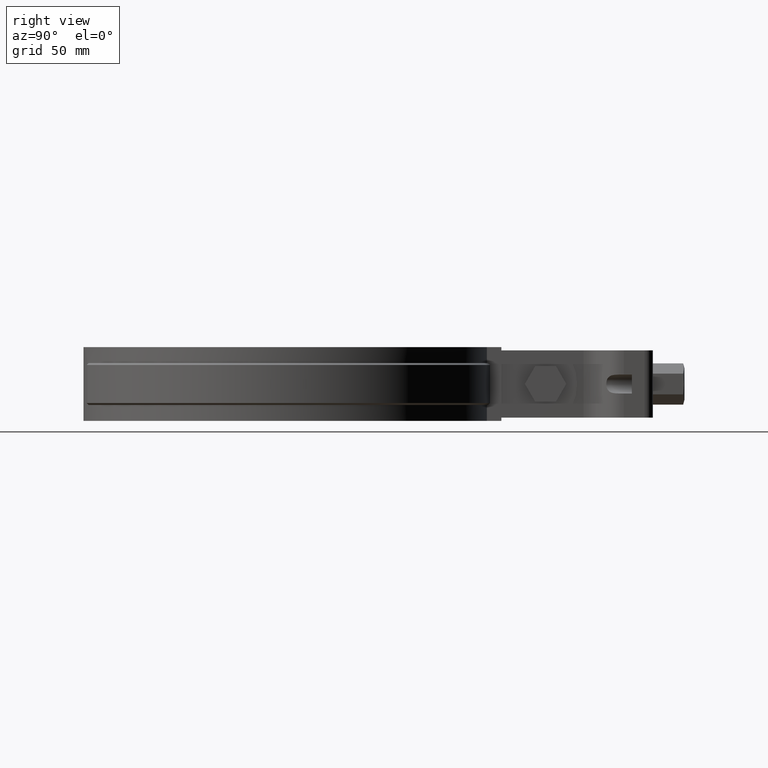
[diagram: clean part render]
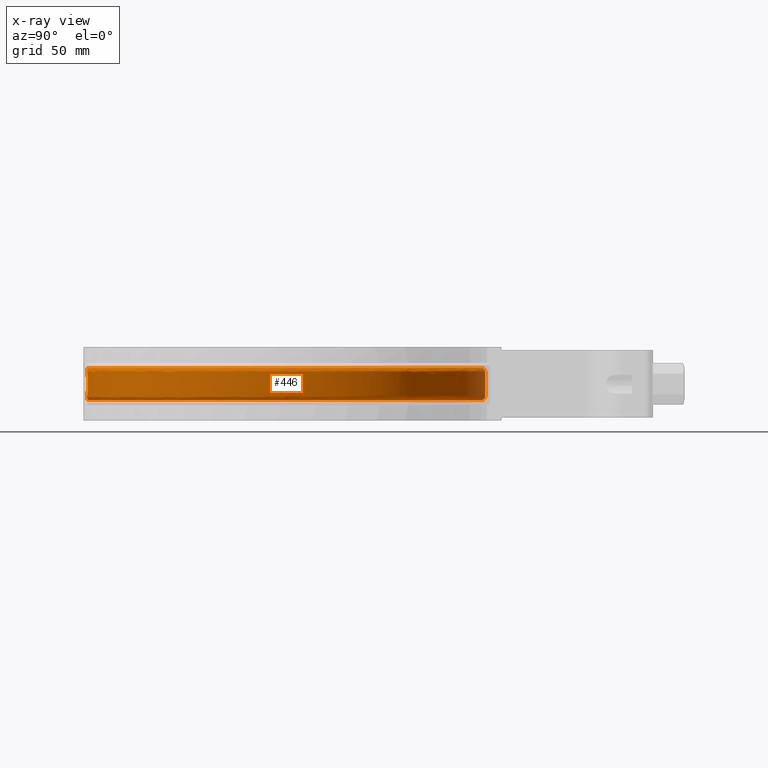
[diagram: x-ray — body ghosted, one internal face saturated and labeled with its STEP entity id]
A machine part, right view, then the same camera in x-ray: the body is ghosted and one INTERNAL B-rep face — a face not visible from any outside direction — is saturated and labeled: STEP entity #446.
In plain terms, the highlighted face is a freeform B-spline surface patch.
Its self-contained STEP definition (entity closure, byte-faithful):
#446 = ADVANCED_FACE( '', ( #788, #789 ), #790, .T. );
#788 = FACE_BOUND( '', #1550, .T. );
#789 = FACE_OUTER_BOUND( '', #1551, .T. );
#790 = B_SPLINE_SURFACE_WITH_KNOTS( '', 3, 3, ( ( #1552, #1553, #1554, #1555, #1556, #1557, #1558, #1559, #1560, #1561, #1562, #1563, #1564, #1565, #1566, #1567, #1568 ), ( #1569, #1570, #1571, #1572, #1573, #1574, #1575, #1576, #1577, #1578, #1579, #1580, #1581, #1582, #1583, #1584, #1585 ), ( #1586, #1587, #1588, #1589, #1590, #1591, #1592, #1593, #1594, #1595, #1596, #1597, #1598, #1599, #1600, #1601, #1602 ), ( #1603, #1604, #1605, #1606, #1607, #1608, #1609, #1610, #1611, #1612, #1613, #1614, #1615, #1616, #1617, #1618, #1619 ), ( #1620, #1621, #1622, #1623, #1624, #1625, #1626, #1627, #1628, #1629, #1630, #1631, #1632, #1633, #1634, #1635, #1636 ), ( #1637, #1638, #1639, #1640, #1641, #1642, #1643, #1644, #1645, #1646, #1647, #1648, #1649, #1650, #1651, #1652, #1653 ), ( #1654, #1655, #1656, #1657, #1658, #1659, #1660, #1661, #1662, #1663, #1664, #1665, #1666, #1667, #1668, #1669, #1670 ), ( #1671, #1672, #1673, #1674, #1675, #1676, #1677, #1678, #1679, #1680, #1681, #1682, #1683, #1684, #1685, #1686, #1687 ), ( #1688, #1689, #1690, #1691, #1692, #1693, #1694, #1695, #1696, #1697, #1698, #1699, #1700, #1701, #1702, #1703, #1704 ), ( #1705, #1706, #1707, #1708, #1709, #1710, #1711, #1712, #1713, #1714, #1715, #1716, #1717, #1718, #1719, #1720, #1721 ), ( #1722, #1723, #1724, #1725, #1726, #1727, #1728, #1729, #1730, #1731, #1732, #1733, #1734, #1735, #1736, #1737, #1738 ), ( #1739, #1740, #1741, #1742, #1743, #1744, #1745, #1746, #1747, #1748, #1749, #1750, #1751, #1752, #1753, #1754, #1755 ), ( #1756, #1757, #1758, #1759, #1760, #1761, #1762, #1763, #1764, #1765, #1766, #1767, #1768, #1769, #1770, #1771, #1772 ), ( #1773, #1774, #1775, #1776, #1777, #1778, #1779, #1780, #1781, #1782, #1783, #1784, #1785, #1786, #1787, #1788, #1789 ), ( #1790, #1791, #1792, #1793, #1794, #1795, #1796, #1797, #1798, #1799, #1800, #1801, #1802, #1803, #1804, #1805, #1806 ), ( #1807, #1808, #1809, #1810, #1811, #1812, #1813, #1814, #1815, #1816, #1817, #1818, #1819, #1820, #1821, #1822, #1823 ), ( #1824, #1825, #1826, #1827, #1828, #1829, #1830, #1831, #1832, #1833, #1834, #1835, #1836, #1837, #1838, #1839, #1840 ), ( #1841, #1842, #1843, #1844, #1845, #1846, #1847, #1848, #1849, #1850, #1851, #1852, #1853, #1854, #1855, #1856, #1857 ), ( #1858, #1859, #1860, #1861, #1862, #1863, #1864, #1865, #1866, #1867, #1868, #1869, #1870, #1871, #1872, #1873, #1874 ), ( #1875, #1876, #1877, #1878, #1879, #1880, #1881, #1882, #1883, #1884, #1885, #1886, #1887, #1888, #1889, #1890, #1891 ), ( #1892, #1893, #1894, #1895, #1896, #1897, #1898, #1899, #1900, #1901, #1902, #1903, #1904, #1905, #1906, #1907, #1908 ), ( #1909, #1910, #1911, #1912, #1913, #1914, #1915, #1916, #1917, #1918, #1919, #1920, #1921, #1922, #1923, #1924, #1925 ) ), .UNSPECIFIED., .F., .F., .F., ( 4, 3, 1, 1, 1, 3, 3, 1, 1, 1, 3, 4 ), ( 4, 1, 1, 1, 1, 1, 1, 1, 1, 1, 1, 1, 1, 1, 4 ), ( 0.000000000000000, 0.0909090909090909, 0.181818181818182, 0.272727272727273, 0.363636363636364, 0.454545454545455, 0.545454545454545, 0.636363636363636, 0.727272727272727, 0.818181818181818, 0.909090909090909, 1.00000000000000 ), ( 2.95232765239058, 4.00000000000000, 5.00000000000000, 6.00000000000000, 7.00000000000000, 8.00000000000000, 9.00000000000000, 10.0000000000000, 11.0000000000000, 12.0000000000000, 13.0000000000000, 14.0000000000000, 15.0000000000000, 16.0000000000000, 17.0000000000000 ), .UNSPECIFIED. );
#1550 = EDGE_LOOP( '', ( #4201, #4202, #4203, #4204, #4205, #4206 ) );
#1551 = EDGE_LOOP( '', ( #4207, #4208, #4209, #4210 ) );
#1552 = CARTESIAN_POINT( '', ( -4.56763401144765, 91.9849112761597, -25.5000000000000 ) );
#1553 = CARTESIAN_POINT( '', ( -18.7312151762936, 91.2825094830827, -25.5000000000000 ) );
#1554 = CARTESIAN_POINT( '', ( -46.1133542076407, 83.3845335569048, -25.5000000000000 ) );
#1555 = CARTESIAN_POINT( '', ( -77.5600743887689, 55.0913393261997, -25.5000000000000 ) );
#1556 = CARTESIAN_POINT( '', ( -93.6608389160550, 16.6886710842363, -25.5000000000000 ) );
#1557 = CARTESIAN_POINT( '', ( -91.8160921178461, -24.9120241628456, -25.5000000000000 ) );
#1558 = CARTESIAN_POINT( '', ( -72.3810764576410, -61.7397395080481, -25.5000000000000 ) );
#1559 = CARTESIAN_POINT( '', ( -39.0787776362604, -86.7390533070568, -25.5000000000000 ) );
#1560 = CARTESIAN_POINT( '', ( 1.71043136730013, -95.1203902903699, -25.5000000000000 ) );
#1561 = CARTESIAN_POINT( '', ( 42.1719465696436, -85.2780177789266, -25.5000000000000 ) );
#1562 = CARTESIAN_POINT( '', ( 74.5539428683033, -59.0976101841152, -25.5000000000000 ) );
#1563 = CARTESIAN_POINT( '', ( 92.6523718270429, -21.5948825619505, -25.5000000000000 ) );
#1564 = CARTESIAN_POINT( '', ( 93.0002903728699, 20.0448852237991, -25.5000000000000 ) );
#1565 = CARTESIAN_POINT( '', ( 75.5293324530292, 57.8452016208980, -25.5000000000000 ) );
#1566 = CARTESIAN_POINT( '', ( 43.5930659544325, 84.5599845188250, -25.5000000000000 ) );
#1567 = CARTESIAN_POINT( '', ( 16.7218261678100, 91.5775242579307, -25.5000000000000 ) );
#1568 = CARTESIAN_POINT( '', ( 3.19295846048184, 92.0426261980790, -25.5000000000000 ) );
#1569 = CARTESIAN_POINT( '', ( -4.55040214201927, 92.7894678815792, -24.6952621458757 ) );
#1570 = CARTESIAN_POINT( '', ( -18.8403760824391, 92.0897235838561, -24.6952621458757 ) );
#1571 = CARTESIAN_POINT( '', ( -46.4628892292601, 84.1397379477213, -24.6952621458757 ) );
#1572 = CARTESIAN_POINT( '', ( -78.2023724140063, 55.6193535999332, -24.6952621458756 ) );
#1573 = CARTESIAN_POINT( '', ( -94.4668319411829, 16.8918890015930, -24.6952621458756 ) );
#1574 = CARTESIAN_POINT( '', ( -92.6317474581613, -25.0725362545484, -24.6952621458757 ) );
#1575 = CARTESIAN_POINT( '', ( -73.0500233185633, -62.2332297796784, -24.6952621458756 ) );
#1576 = CARTESIAN_POINT( '', ( -39.4728827843129, -87.4709760831065, -24.6952621458757 ) );
#1577 = CARTESIAN_POINT( '', ( 1.66667971317962, -95.9505195608943, -24.6952621458756 ) );
#1578 = CARTESIAN_POINT( '', ( 42.4869305907704, -86.0473128356223, -24.6952621458756 ) );
#1579 = CARTESIAN_POINT( '', ( 75.1673093057916, -59.6586843006938, -24.6952621458757 ) );
#1580 = CARTESIAN_POINT( '', ( 93.4466357094579, -21.8402448468652, -24.6952621458756 ) );
#1581 = CARTESIAN_POINT( '', ( 93.8231797739318, 20.1622534993661, -24.6952621458756 ) );
#1582 = CARTESIAN_POINT( '', ( 76.2235754557028, 58.3027739973906, -24.6952621458756 ) );
#1583 = CARTESIAN_POINT( '', ( 44.0242300422874, 85.2702473381467, -24.6952621458757 ) );
#1584 = CARTESIAN_POINT( '', ( 16.9260810112901, 92.3651550072251, -24.6952621458757 ) );
#1585 = CARTESIAN_POINT( '', ( 3.27755030109312, 92.8429056707401, -24.6952621458757 ) );
#1586 = CARTESIAN_POINT( '', ( -4.53317027259089, 93.5940244869987, -23.8905242917513 ) );
#1587 = CARTESIAN_POINT( '', ( -18.9495369885846, 92.8969376846294, -23.8905242917513 ) );
#1588 = CARTESIAN_POINT( '', ( -46.8124242508795, 84.8949423385379, -23.8905242917513 ) );
#1589 = CARTESIAN_POINT( '', ( -78.8446704392437, 56.1473678736668, -23.8905242917513 ) );
#1590 = CARTESIAN_POINT( '', ( -95.2728249663108, 17.0951069189498, -23.8905242917513 ) );
#1591 = CARTESIAN_POINT( '', ( -93.4474027984764, -25.2330483462511, -23.8905242917513 ) );
#1592 = CARTESIAN_POINT( '', ( -73.7189701794856, -62.7267200513086, -23.8905242917513 ) );
#1593 = CARTESIAN_POINT( '', ( -39.8669879323653, -88.2028988591561, -23.8905242917513 ) );
#1594 = CARTESIAN_POINT( '', ( 1.62292805905910, -96.7806488314187, -23.8905242917513 ) );
#1595 = CARTESIAN_POINT( '', ( 42.8019146118972, -86.8166078923180, -23.8905242917513 ) );
#1596 = CARTESIAN_POINT( '', ( 75.7806757432798, -60.2197584172724, -23.8905242917513 ) );
#1597 = CARTESIAN_POINT( '', ( 94.2408995918728, -22.0856071317799, -23.8905242917513 ) );
#1598 = CARTESIAN_POINT( '', ( 94.6460691749937, 20.2796217749332, -23.8905242917513 ) );
#1599 = CARTESIAN_POINT( '', ( 76.9178184583764, 58.7603463738830, -23.8905242917513 ) );
#1600 = CARTESIAN_POINT( '', ( 44.4553941301422, 85.9805101574684, -23.8905242917513 ) );
#1601 = CARTESIAN_POINT( '', ( 17.1303358547702, 93.1527857565194, -23.8905242917513 ) );
#1602 = CARTESIAN_POINT( '', ( 3.36214214170440, 93.6431851434011, -23.8905242917513 ) );
#1603 = CARTESIAN_POINT( '', ( -4.51593840316250, 94.3985810924182, -23.0857864376269 ) );
#1604 = CARTESIAN_POINT( '', ( -19.0586978947301, 93.7041517854027, -23.0857864376269 ) );
#1605 = CARTESIAN_POINT( '', ( -47.1619592724989, 85.6501467293545, -23.0857864376269 ) );
#1606 = CARTESIAN_POINT( '', ( -79.4869684644812, 56.6753821474003, -23.0857864376269 ) );
#1607 = CARTESIAN_POINT( '', ( -96.0788179914387, 17.2983248363065, -23.0857864376269 ) );
#1608 = CARTESIAN_POINT( '', ( -94.2630581387916, -25.3935604379539, -23.0857864376269 ) );
#1609 = CARTESIAN_POINT( '', ( -74.3879170404078, -63.2202103229388, -23.0857864376269 ) );
#1610 = CARTESIAN_POINT( '', ( -40.2610930804177, -88.9348216352058, -23.0857864376269 ) );
#1611 = CARTESIAN_POINT( '', ( 1.57917640493858, -97.6107781019430, -23.0857864376269 ) );
#1612 = CARTESIAN_POINT( '', ( 43.1168986330240, -87.5859029490137, -23.0857864376269 ) );
#1613 = CARTESIAN_POINT( '', ( 76.3940421807681, -60.7808325338509, -23.0857864376269 ) );
#1614 = CARTESIAN_POINT( '', ( 95.0351634742878, -22.3309694166946, -23.0857864376269 ) );
#1615 = CARTESIAN_POINT( '', ( 95.4689585760556, 20.3969900505003, -23.0857864376269 ) );
#1616 = CARTESIAN_POINT( '', ( 77.6120614610500, 59.2179187503756, -23.0857864376269 ) );
#1617 = CARTESIAN_POINT( '', ( 44.8865582179970, 86.6907729767901, -23.0857864376269 ) );
#1618 = CARTESIAN_POINT( '', ( 17.3345906982503, 93.9404165058138, -23.0857864376269 ) );
#1619 = CARTESIAN_POINT( '', ( 3.44673398231568, 94.4434646160622, -23.0857864376269 ) );
#1620 = CARTESIAN_POINT( '', ( -4.51395642897079, 94.4911195389486, -22.9932271442431 ) );
#1621 = CARTESIAN_POINT( '', ( -19.0712533577125, 93.7969958915847, -22.9932271442431 ) );
#1622 = CARTESIAN_POINT( '', ( -47.2021620720170, 85.7370087856329, -22.9932271442431 ) );
#1623 = CARTESIAN_POINT( '', ( -79.5608442627341, 56.7361132635307, -22.9932271442431 ) );
#1624 = CARTESIAN_POINT( '', ( -96.1715216520106, 17.3216985433306, -22.9932271442431 ) );
#1625 = CARTESIAN_POINT( '', ( -94.3568731389900, -25.4120222087174, -22.9932271442431 ) );
#1626 = CARTESIAN_POINT( '', ( -74.4648579329493, -63.2769705593311, -22.9932271442431 ) );
#1627 = CARTESIAN_POINT( '', ( -40.3064222442388, -89.0190058880223, -22.9932271442431 ) );
#1628 = CARTESIAN_POINT( '', ( 1.57414417963811, -97.7062578638346, -22.9932271442431 ) );
#1629 = CARTESIAN_POINT( '', ( 43.1531274475047, -87.6743856847101, -22.9932271442431 ) );
#1630 = CARTESIAN_POINT( '', ( 76.4645903272834, -60.8453661251320, -22.9932271442431 ) );
#1631 = CARTESIAN_POINT( '', ( 95.1265180729808, -22.3591904822234, -22.9932271442431 ) );
#1632 = CARTESIAN_POINT( '', ( 95.5636056230473, 20.4104895082386, -22.9932271442431 ) );
#1633 = CARTESIAN_POINT( '', ( 77.6919118638051, 59.2705477843188, -22.9932271442431 ) );
#1634 = CARTESIAN_POINT( '', ( 44.9361498248784, 86.7724659459182, -22.9932271442431 ) );
#1635 = CARTESIAN_POINT( '', ( 17.3580836703850, 94.0310081751734, -22.9932271442431 ) );
#1636 = CARTESIAN_POINT( '', ( 3.45646356189602, 94.5355111155768, -22.9932271442431 ) );
#1637 = CARTESIAN_POINT( '', ( -4.51038289542647, 94.6579679490829, -22.7898759680773 ) );
#1638 = CARTESIAN_POINT( '', ( -19.0938910733394, 93.9643954113262, -22.7898759680773 ) );
#1639 = CARTESIAN_POINT( '', ( -47.2746484107664, 85.8936225665470, -22.7898759680773 ) );
#1640 = CARTESIAN_POINT( '', ( -79.6940435971518, 56.8456125100812, -22.7898759680773 ) );
#1641 = CARTESIAN_POINT( '', ( -96.3386679459022, 17.3638417389657, -22.7898759680773 ) );
#1642 = CARTESIAN_POINT( '', ( -94.5260231973356, -25.4453090988225, -22.7898759680773 ) );
#1643 = CARTESIAN_POINT( '', ( -74.6035836850685, -63.3793102414412, -22.7898759680773 ) );
#1644 = CARTESIAN_POINT( '', ( -40.3881515059655, -89.1707915432545, -22.7898759680773 ) );
#1645 = CARTESIAN_POINT( '', ( 1.56507099090088, -97.8784095161360, -22.7898759680773 ) );
#1646 = CARTESIAN_POINT( '', ( 43.2184486229058, -87.8339215784797, -22.7898759680773 ) );
#1647 = CARTESIAN_POINT( '', ( 76.5917898484051, -60.9617212997562, -22.7898759680773 ) );
#1648 = CARTESIAN_POINT( '', ( 95.2912319851100, -22.4100735485846, -22.7898759680773 ) );
#1649 = CARTESIAN_POINT( '', ( 95.7342558760670, 20.4348292626408, -22.7898759680773 ) );
#1650 = CARTESIAN_POINT( '', ( 77.8358835128633, 59.3654388373844, -22.7898759680773 ) );
#1651 = CARTESIAN_POINT( '', ( 45.0255643447282, 86.9197597738268, -22.7898759680773 ) );
#1652 = CARTESIAN_POINT( '', ( 17.4004419030654, 94.1943465125974, -22.7898759680773 ) );
#1653 = CARTESIAN_POINT( '', ( 3.47400616116282, 94.7014725367835, -22.7898759680773 ) );
#1654 = CARTESIAN_POINT( '', ( -4.50639983296243, 94.8439372792570, -22.4418734431229 ) );
#1655 = CARTESIAN_POINT( '', ( -19.1191230836918, 94.1509790085731, -22.4418734431229 ) );
#1656 = CARTESIAN_POINT( '', ( -47.3554417240088, 86.0681843733344, -22.4418734431229 ) );
#1657 = CARTESIAN_POINT( '', ( -79.8425076489301, 56.9676604308206, -22.4418734431229 ) );
#1658 = CARTESIAN_POINT( '', ( -96.5249692974769, 17.4108145681187, -22.4418734431229 ) );
#1659 = CARTESIAN_POINT( '', ( -94.7145579458786, -25.4824106849356, -22.4418734431229 ) );
#1660 = CARTESIAN_POINT( '', ( -74.7582074850718, -63.4933781076974, -22.4418734431229 ) );
#1661 = CARTESIAN_POINT( '', ( -40.4792469862683, -89.3399719184876, -22.4418734431230 ) );
#1662 = CARTESIAN_POINT( '', ( 1.55495800971846, -98.0702898429613, -22.4418734431229 ) );
#1663 = CARTESIAN_POINT( '', ( 43.2912556411192, -88.0117403738712, -22.4418734431229 ) );
#1664 = CARTESIAN_POINT( '', ( 76.7335665049668, -61.0914108417167, -22.4418734431230 ) );
#1665 = CARTESIAN_POINT( '', ( 95.4748222026276, -22.4667878424804, -22.4418734431229 ) );
#1666 = CARTESIAN_POINT( '', ( 95.9244627424230, 20.4619583663531, -22.4418734431229 ) );
#1667 = CARTESIAN_POINT( '', ( 77.9963543924952, 59.4712044575897, -22.4418734431229 ) );
#1668 = CARTESIAN_POINT( '', ( 45.1252258179836, 87.0839335558417, -22.4418734431230 ) );
#1669 = CARTESIAN_POINT( '', ( 17.4476544126277, 94.3764035137880, -22.4418734431229 ) );
#1670 = CARTESIAN_POINT( '', ( 3.49355915200362, 94.8864532286085, -22.4418734431229 ) );
#1671 = CARTESIAN_POINT( '', ( -4.50394707520758, 94.9584566273380, -22.0642686993349 ) );
#1672 = CARTESIAN_POINT( '', ( -19.1346608789489, 94.2658766204498, -22.0642686993349 ) );
#1673 = CARTESIAN_POINT( '', ( -47.4051940006513, 86.1756790031984, -22.0642686993349 ) );
#1674 = CARTESIAN_POINT( '', ( -79.9339313606098, 57.0428171693249, -22.0642686993349 ) );
#1675 = CARTESIAN_POINT( '', ( -96.6396931033270, 17.4397402934900, -22.0642686993349 ) );
#1676 = CARTESIAN_POINT( '', ( -94.8306570707910, -25.5052577288565, -22.0642686993349 ) );
#1677 = CARTESIAN_POINT( '', ( -74.8534243509799, -63.5636207529143, -22.0642686993349 ) );
#1678 = CARTESIAN_POINT( '', ( -40.5353433060627, -89.4441526791628, -22.0642686993349 ) );
#1679 = CARTESIAN_POINT( '', ( 1.54873046665486, -98.1884491648077, -22.0642686993349 ) );
#1680 = CARTESIAN_POINT( '', ( 43.3360899815651, -88.1212406474148, -22.0642686993349 ) );
#1681 = CARTESIAN_POINT( '', ( 76.8208721390052, -61.1712732673346, -22.0642686993349 ) );
#1682 = CARTESIAN_POINT( '', ( 95.5878765003684, -22.5017123322215, -22.0642686993349 ) );
#1683 = CARTESIAN_POINT( '', ( 96.0415915524006, 20.4786643859331, -22.0642686993349 ) );
#1684 = CARTESIAN_POINT( '', ( 78.0951718722603, 59.5363346049315, -22.0642686993349 ) );
#1685 = CARTESIAN_POINT( '', ( 45.1865970501934, 87.1850312716357, -22.0642686993349 ) );
#1686 = CARTESIAN_POINT( '', ( 17.4767277324665, 94.4885136615765, -22.0642686993349 ) );
#1687 = CARTESIAN_POINT( '', ( 3.50559982431247, 95.0003637762001, -22.0642686993349 ) );
#1688 = CARTESIAN_POINT( '', ( -4.50339494524715, 94.9842355951142, -21.8024714832809 ) );
#1689 = CARTESIAN_POINT( '', ( -19.1381585265513, 94.2917407375948, -21.8024714832809 ) );
#1690 = CARTESIAN_POINT( '', ( -47.4163935259529, 86.1998766662642, -21.8024714832809 ) );
#1691 = CARTESIAN_POINT( '', ( -79.9545113670181, 57.0597353859628, -21.8024714832809 ) );
#1692 = CARTESIAN_POINT( '', ( -96.6655180957298, 17.4462516416137, -21.8024714832808 ) );
#1693 = CARTESIAN_POINT( '', ( -94.8567916554713, -25.5104007306190, -21.8024714832809 ) );
#1694 = CARTESIAN_POINT( '', ( -74.8748582183492, -63.5794327787240, -21.8024714832808 ) );
#1695 = CARTESIAN_POINT( '', ( -40.5479709121797, -89.4676043711026, -21.8024714832809 ) );
#1696 = CARTESIAN_POINT( '', ( 1.54732861068336, -98.2150475117367, -21.8024714832808 ) );
#1697 = CARTESIAN_POINT( '', ( 43.3461824509774, -88.1458897924761, -21.8024714832809 ) );
#1698 = CARTESIAN_POINT( '', ( 76.8405251423122, -61.1892507613653, -21.8024714832809 ) );
#1699 = CARTESIAN_POINT( '', ( 95.6133256768374, -22.5095740369092, -21.8024714832809 ) );
#1700 = CARTESIAN_POINT( '', ( 96.0679579251461, 20.4824250075891, -21.8024714832808 ) );
#1701 = CARTESIAN_POINT( '', ( 78.1174162586394, 59.5509957778924, -21.8024714832809 ) );
#1702 = CARTESIAN_POINT( '', ( 45.2004120696118, 87.2077889523366, -21.8024714832809 ) );
#1703 = CARTESIAN_POINT( '', ( 17.4832723049586, 94.5137503044290, -21.8024714832809 ) );
#1704 = CARTESIAN_POINT( '', ( 3.50831024930750, 95.0260056994640, -21.8024714832809 ) );
#1705 = CARTESIAN_POINT( '', ( -4.50339494524715, 94.9842355951142, -21.6715728752538 ) );
#1706 = CARTESIAN_POINT( '', ( -19.1381585265513, 94.2917407375948, -21.6715728752538 ) );
#1707 = CARTESIAN_POINT( '', ( -47.4163935259529, 86.1998766662642, -21.6715728752538 ) );
#1708 = CARTESIAN_POINT( '', ( -79.9545113670181, 57.0597353859628, -21.6715728752538 ) );
#1709 = CARTESIAN_POINT( '', ( -96.6655180957298, 17.4462516416137, -21.6715728752538 ) );
#1710 = CARTESIAN_POINT( '', ( -94.8567916554713, -25.5104007306190, -21.6715728752538 ) );
#1711 = CARTESIAN_POINT( '', ( -74.8748582183492, -63.5794327787240, -21.6715728752538 ) );
#1712 = CARTESIAN_POINT( '', ( -40.5479709121797, -89.4676043711026, -21.6715728752538 ) );
#1713 = CARTESIAN_POINT( '', ( 1.54732861068336, -98.2150475117367, -21.6715728752538 ) );
#1714 = CARTESIAN_POINT( '', ( 43.3461824509774, -88.1458897924761, -21.6715728752538 ) );
#1715 = CARTESIAN_POINT( '', ( 76.8405251423122, -61.1892507613653, -21.6715728752538 ) );
#1716 = CARTESIAN_POINT( '', ( 95.6133256768374, -22.5095740369092, -21.6715728752538 ) );
#1717 = CARTESIAN_POINT( '', ( 96.0679579251461, 20.4824250075891, -21.6715728752538 ) );
#1718 = CARTESIAN_POINT( '', ( 78.1174162586394, 59.5509957778924, -21.6715728752538 ) );
#1719 = CARTESIAN_POINT( '', ( 45.2004120696118, 87.2077889523366, -21.6715728752538 ) );
#1720 = CARTESIAN_POINT( '', ( 17.4832723049586, 94.5137503044290, -21.6715728752538 ) );
#1721 = CARTESIAN_POINT( '', ( 3.50831024930750, 95.0260056994640, -21.6715728752538 ) );
#1722 = CARTESIAN_POINT( '', ( -4.50339494524715, 94.9842355951142, -17.8905242917513 ) );
#1723 = CARTESIAN_POINT( '', ( -19.1381585265513, 94.2917407375948, -17.8905242917513 ) );
#1724 = CARTESIAN_POINT( '', ( -47.4163935259529, 86.1998766662642, -17.8905242917513 ) );
#1725 = CARTESIAN_POINT( '', ( -79.9545113670181, 57.0597353859628, -17.8905242917513 ) );
#1726 = CARTESIAN_POINT( '', ( -96.6655180957298, 17.4462516416137, -17.8905242917513 ) );
#1727 = CARTESIAN_POINT( '', ( -94.8567916554714, -25.5104007306190, -17.8905242917513 ) );
#1728 = CARTESIAN_POINT( '', ( -74.8748582183493, -63.5794327787240, -17.8905242917513 ) );
#1729 = CARTESIAN_POINT( '', ( -40.5479709121797, -89.4676043711026, -17.8905242917513 ) );
#1730 = CARTESIAN_POINT( '', ( 1.54732861068335, -98.2150475117367, -17.8905242917513 ) );
#1731 = CARTESIAN_POINT( '', ( 43.3461824509774, -88.1458897924761, -17.8905242917513 ) );
#1732 = CARTESIAN_POINT( '', ( 76.8405251423122, -61.1892507613654, -17.8905242917513 ) );
#1733 = CARTESIAN_POINT( '', ( 95.6133256768374, -22.5095740369091, -17.8905242917513 ) );
#1734 = CARTESIAN_POINT( '', ( 96.0679579251461, 20.4824250075891, -17.8905242917513 ) );
#1735 = CARTESIAN_POINT( '', ( 78.1174162586394, 59.5509957778924, -17.8905242917513 ) );
#1736 = CARTESIAN_POINT( '', ( 45.2004120696118, 87.2077889523367, -17.8905242917513 ) );
#1737 = CARTESIAN_POINT( '', ( 17.4832723049586, 94.5137503044290, -17.8905242917513 ) );
#1738 = CARTESIAN_POINT( '', ( 3.50831024930750, 95.0260056994641, -17.8905242917513 ) );
#1739 = CARTESIAN_POINT( '', ( -4.50339494524715, 94.9842355951142, -14.1094757082487 ) );
#1740 = CARTESIAN_POINT( '', ( -19.1381585265513, 94.2917407375948, -14.1094757082487 ) );
#1741 = CARTESIAN_POINT( '', ( -47.4163935259529, 86.1998766662642, -14.1094757082487 ) );
#1742 = CARTESIAN_POINT( '', ( -79.9545113670181, 57.0597353859628, -14.1094757082487 ) );
#1743 = CARTESIAN_POINT( '', ( -96.6655180957298, 17.4462516416137, -14.1094757082487 ) );
#1744 = CARTESIAN_POINT( '', ( -94.8567916554714, -25.5104007306190, -14.1094757082487 ) );
#1745 = CARTESIAN_POINT( '', ( -74.8748582183493, -63.5794327787240, -14.1094757082487 ) );
#1746 = CARTESIAN_POINT( '', ( -40.5479709121797, -89.4676043711026, -14.1094757082488 ) );
#1747 = CARTESIAN_POINT( '', ( 1.54732861068335, -98.2150475117367, -14.1094757082487 ) );
#1748 = CARTESIAN_POINT( '', ( 43.3461824509774, -88.1458897924761, -14.1094757082487 ) );
#1749 = CARTESIAN_POINT( '', ( 76.8405251423122, -61.1892507613654, -14.1094757082487 ) );
#1750 = CARTESIAN_POINT( '', ( 95.6133256768374, -22.5095740369091, -14.1094757082487 ) );
#1751 = CARTESIAN_POINT( '', ( 96.0679579251461, 20.4824250075891, -14.1094757082487 ) );
#1752 = CARTESIAN_POINT( '', ( 78.1174162586394, 59.5509957778924, -14.1094757082487 ) );
#1753 = CARTESIAN_POINT( '', ( 45.2004120696118, 87.2077889523367, -14.1094757082487 ) );
#1754 = CARTESIAN_POINT( '', ( 17.4832723049586, 94.5137503044290, -14.1094757082487 ) );
#1755 = CARTESIAN_POINT( '', ( 3.50831024930750, 95.0260056994641, -14.1094757082487 ) );
#1756 = CARTESIAN_POINT( '', ( -4.50339494524715, 94.9842355951142, -10.3284271247462 ) );
#1757 = CARTESIAN_POINT( '', ( -19.1381585265513, 94.2917407375948, -10.3284271247462 ) );
#1758 = CARTESIAN_POINT( '', ( -47.4163935259529, 86.1998766662642, -10.3284271247462 ) );
#1759 = CARTESIAN_POINT( '', ( -79.9545113670181, 57.0597353859628, -10.3284271247462 ) );
#1760 = CARTESIAN_POINT( '', ( -96.6655180957298, 17.4462516416137, -10.3284271247462 ) );
#1761 = CARTESIAN_POINT( '', ( -94.8567916554714, -25.5104007306190, -10.3284271247462 ) );
#1762 = CARTESIAN_POINT( '', ( -74.8748582183493, -63.5794327787240, -10.3284271247462 ) );
#1763 = CARTESIAN_POINT( '', ( -40.5479709121797, -89.4676043711026, -10.3284271247462 ) );
#1764 = CARTESIAN_POINT( '', ( 1.54732861068335, -98.2150475117367, -10.3284271247462 ) );
#1765 = CARTESIAN_POINT( '', ( 43.3461824509774, -88.1458897924761, -10.3284271247462 ) );
#1766 = CARTESIAN_POINT( '', ( 76.8405251423122, -61.1892507613654, -10.3284271247462 ) );
#1767 = CARTESIAN_POINT( '', ( 95.6133256768374, -22.5095740369091, -10.3284271247462 ) );
#1768 = CARTESIAN_POINT( '', ( 96.0679579251461, 20.4824250075891, -10.3284271247462 ) );
#1769 = CARTESIAN_POINT( '', ( 78.1174162586394, 59.5509957778924, -10.3284271247462 ) );
#1770 = CARTESIAN_POINT( '', ( 45.2004120696118, 87.2077889523367, -10.3284271247462 ) );
#1771 = CARTESIAN_POINT( '', ( 17.4832723049586, 94.5137503044290, -10.3284271247462 ) );
#1772 = CARTESIAN_POINT( '', ( 3.50831024930750, 95.0260056994641, -10.3284271247462 ) );
#1773 = CARTESIAN_POINT( '', ( -4.50339494524715, 94.9842355951142, -10.1975285167192 ) );
#1774 = CARTESIAN_POINT( '', ( -19.1381585265513, 94.2917407375948, -10.1975285167192 ) );
#1775 = CARTESIAN_POINT( '', ( -47.4163935259529, 86.1998766662642, -10.1975285167192 ) );
#1776 = CARTESIAN_POINT( '', ( -79.9545113670181, 57.0597353859628, -10.1975285167192 ) );
#1777 = CARTESIAN_POINT( '', ( -96.6655180957298, 17.4462516416137, -10.1975285167192 ) );
#1778 = CARTESIAN_POINT( '', ( -94.8567916554714, -25.5104007306190, -10.1975285167192 ) );
#1779 = CARTESIAN_POINT( '', ( -74.8748582183493, -63.5794327787240, -10.1975285167192 ) );
#1780 = CARTESIAN_POINT( '', ( -40.5479709121797, -89.4676043711026, -10.1975285167192 ) );
#1781 = CARTESIAN_POINT( '', ( 1.54732861068335, -98.2150475117367, -10.1975285167192 ) );
#1782 = CARTESIAN_POINT( '', ( 43.3461824509774, -88.1458897924761, -10.1975285167192 ) );
#1783 = CARTESIAN_POINT( '', ( 76.8405251423122, -61.1892507613654, -10.1975285167192 ) );
#1784 = CARTESIAN_POINT( '', ( 95.6133256768374, -22.5095740369091, -10.1975285167192 ) );
#1785 = CARTESIAN_POINT( '', ( 96.0679579251461, 20.4824250075891, -10.1975285167192 ) );
#1786 = CARTESIAN_POINT( '', ( 78.1174162586394, 59.5509957778924, -10.1975285167192 ) );
#1787 = CARTESIAN_POINT( '', ( 45.2004120696118, 87.2077889523367, -10.1975285167192 ) );
#1788 = CARTESIAN_POINT( '', ( 17.4832723049586, 94.5137503044290, -10.1975285167192 ) );
#1789 = CARTESIAN_POINT( '', ( 3.50831024930750, 95.0260056994641, -10.1975285167192 ) );
#1790 = CARTESIAN_POINT( '', ( -4.50394707520758, 94.9584566273380, -9.93573130066510 ) );
#1791 = CARTESIAN_POINT( '', ( -19.1346608789489, 94.2658766204498, -9.93573130066510 ) );
#1792 = CARTESIAN_POINT( '', ( -47.4051940006513, 86.1756790031984, -9.93573130066510 ) );
#1793 = CARTESIAN_POINT( '', ( -79.9339313606099, 57.0428171693249, -9.93573130066510 ) );
#1794 = CARTESIAN_POINT( '', ( -96.6396931033270, 17.4397402934900, -9.93573130066509 ) );
#1795 = CARTESIAN_POINT( '', ( -94.8306570707910, -25.5052577288565, -9.93573130066510 ) );
#1796 = CARTESIAN_POINT( '', ( -74.8534243509799, -63.5636207529143, -9.93573130066509 ) );
#1797 = CARTESIAN_POINT( '', ( -40.5353433060627, -89.4441526791628, -9.93573130066511 ) );
#1798 = CARTESIAN_POINT( '', ( 1.54873046665486, -98.1884491648077, -9.93573130066510 ) );
#1799 = CARTESIAN_POINT( '', ( 43.3360899815651, -88.1212406474148, -9.93573130066510 ) );
#1800 = CARTESIAN_POINT( '', ( 76.8208721390052, -61.1712732673346, -9.93573130066510 ) );
#1801 = CARTESIAN_POINT( '', ( 95.5878765003684, -22.5017123322215, -9.93573130066510 ) );
#1802 = CARTESIAN_POINT( '', ( 96.0415915524006, 20.4786643859331, -9.93573130066509 ) );
#1803 = CARTESIAN_POINT( '', ( 78.0951718722603, 59.5363346049315, -9.93573130066510 ) );
#1804 = CARTESIAN_POINT( '', ( 45.1865970501934, 87.1850312716358, -9.93573130066510 ) );
#1805 = CARTESIAN_POINT( '', ( 17.4767277324665, 94.4885136615765, -9.93573130066510 ) );
#1806 = CARTESIAN_POINT( '', ( 3.50559982431247, 95.0003637762001, -9.93573130066510 ) );
#1807 = CARTESIAN_POINT( '', ( -4.50639983296243, 94.8439372792570, -9.55812655687708 ) );
#1808 = CARTESIAN_POINT( '', ( -19.1191230836918, 94.1509790085731, -9.55812655687708 ) );
#1809 = CARTESIAN_POINT( '', ( -47.3554417240088, 86.0681843733344, -9.55812655687708 ) );
#1810 = CARTESIAN_POINT( '', ( -79.8425076489301, 56.9676604308206, -9.55812655687707 ) );
#1811 = CARTESIAN_POINT( '', ( -96.5249692974770, 17.4108145681187, -9.55812655687707 ) );
#1812 = CARTESIAN_POINT( '', ( -94.7145579458786, -25.4824106849356, -9.55812655687708 ) );
#1813 = CARTESIAN_POINT( '', ( -74.7582074850719, -63.4933781076974, -9.55812655687707 ) );
#1814 = CARTESIAN_POINT( '', ( -40.4792469862683, -89.3399719184876, -9.55812655687708 ) );
#1815 = CARTESIAN_POINT( '', ( 1.55495800971846, -98.0702898429613, -9.55812655687707 ) );
#1816 = CARTESIAN_POINT( '', ( 43.2912556411192, -88.0117403738713, -9.55812655687707 ) );
#1817 = CARTESIAN_POINT( '', ( 76.7335665049668, -61.0914108417167, -9.55812655687708 ) );
#1818 = CARTESIAN_POINT( '', ( 95.4748222026276, -22.4667878424804, -9.55812655687707 ) );
#1819 = CARTESIAN_POINT( '', ( 95.9244627424231, 20.4619583663531, -9.55812655687707 ) );
#1820 = CARTESIAN_POINT( '', ( 77.9963543924952, 59.4712044575897, -9.55812655687707 ) );
#1821 = CARTESIAN_POINT( '', ( 45.1252258179836, 87.0839335558417, -9.55812655687708 ) );
#1822 = CARTESIAN_POINT( '', ( 17.4476544126277, 94.3764035137880, -9.55812655687708 ) );
#1823 = CARTESIAN_POINT( '', ( 3.49355915200362, 94.8864532286085, -9.55812655687708 ) );
#1824 = CARTESIAN_POINT( '', ( -4.51038289542647, 94.6579679490829, -9.21012403192273 ) );
#1825 = CARTESIAN_POINT( '', ( -19.0938910733394, 93.9643954113262, -9.21012403192273 ) );
#1826 = CARTESIAN_POINT( '', ( -47.2746484107664, 85.8936225665471, -9.21012403192273 ) );
#1827 = CARTESIAN_POINT( '', ( -79.6940435971518, 56.8456125100812, -9.21012403192273 ) );
#1828 = CARTESIAN_POINT( '', ( -96.3386679459022, 17.3638417389658, -9.21012403192272 ) );
#1829 = CARTESIAN_POINT( '', ( -94.5260231973356, -25.4453090988225, -9.21012403192273 ) );
#1830 = CARTESIAN_POINT( '', ( -74.6035836850685, -63.3793102414412, -9.21012403192272 ) );
#1831 = CARTESIAN_POINT( '', ( -40.3881515059655, -89.1707915432545, -9.21012403192273 ) );
#1832 = CARTESIAN_POINT( '', ( 1.56507099090088, -97.8784095161360, -9.21012403192272 ) );
#1833 = CARTESIAN_POINT( '', ( 43.2184486229058, -87.8339215784798, -9.21012403192272 ) );
#1834 = CARTESIAN_POINT( '', ( 76.5917898484051, -60.9617212997562, -9.21012403192273 ) );
#1835 = CARTESIAN_POINT( '', ( 95.2912319851100, -22.4100735485846, -9.21012403192272 ) );
#1836 = CARTESIAN_POINT( '', ( 95.7342558760671, 20.4348292626408, -9.21012403192272 ) );
#1837 = CARTESIAN_POINT( '', ( 77.8358835128634, 59.3654388373844, -9.21012403192273 ) );
#1838 = CARTESIAN_POINT( '', ( 45.0255643447282, 86.9197597738268, -9.21012403192273 ) );
#1839 = CARTESIAN_POINT( '', ( 17.4004419030654, 94.1943465125974, -9.21012403192273 ) );
#1840 = CARTESIAN_POINT( '', ( 3.47400616116282, 94.7014725367835, -9.21012403192273 ) );
#1841 = CARTESIAN_POINT( '', ( -4.51395642897079, 94.4911195389486, -9.00677285575690 ) );
#1842 = CARTESIAN_POINT( '', ( -19.0712533577125, 93.7969958915848, -9.00677285575690 ) );
#1843 = CARTESIAN_POINT( '', ( -47.2021620720170, 85.7370087856330, -9.00677285575690 ) );
#1844 = CARTESIAN_POINT( '', ( -79.5608442627341, 56.7361132635307, -9.00677285575690 ) );
#1845 = CARTESIAN_POINT( '', ( -96.1715216520106, 17.3216985433306, -9.00677285575689 ) );
#1846 = CARTESIAN_POINT( '', ( -94.3568731389899, -25.4120222087174, -9.00677285575690 ) );
#1847 = CARTESIAN_POINT( '', ( -74.4648579329494, -63.2769705593311, -9.00677285575690 ) );
#1848 = CARTESIAN_POINT( '', ( -40.3064222442388, -89.0190058880223, -9.00677285575690 ) );
#1849 = CARTESIAN_POINT( '', ( 1.57414417963811, -97.7062578638346, -9.00677285575690 ) );
#1850 = CARTESIAN_POINT( '', ( 43.1531274475047, -87.6743856847102, -9.00677285575690 ) );
#1851 = CARTESIAN_POINT( '', ( 76.4645903272835, -60.8453661251320, -9.00677285575690 ) );
#1852 = CARTESIAN_POINT( '', ( 95.1265180729808, -22.3591904822234, -9.00677285575690 ) );
#1853 = CARTESIAN_POINT( '', ( 95.5636056230473, 20.4104895082386, -9.00677285575689 ) );
#1854 = CARTESIAN_POINT( '', ( 77.6919118638051, 59.2705477843188, -9.00677285575690 ) );
#1855 = CARTESIAN_POINT( '', ( 44.9361498248784, 86.7724659459183, -9.00677285575690 ) );
#1856 = CARTESIAN_POINT( '', ( 17.3580836703850, 94.0310081751735, -9.00677285575690 ) );
#1857 = CARTESIAN_POINT( '', ( 3.45646356189602, 94.5355111155769, -9.00677285575690 ) );
#1858 = CARTESIAN_POINT( '', ( -4.51593840316250, 94.3985810924182, -8.91421356237310 ) );
#1859 = CARTESIAN_POINT( '', ( -19.0586978947301, 93.7041517854027, -8.91421356237310 ) );
#1860 = CARTESIAN_POINT( '', ( -47.1619592724989, 85.6501467293545, -8.91421356237310 ) );
#1861 = CARTESIAN_POINT( '', ( -79.4869684644812, 56.6753821474003, -8.91421356237310 ) );
#1862 = CARTESIAN_POINT( '', ( -96.0788179914387, 17.2983248363065, -8.91421356237310 ) );
#1863 = CARTESIAN_POINT( '', ( -94.2630581387916, -25.3935604379539, -8.91421356237310 ) );
#1864 = CARTESIAN_POINT( '', ( -74.3879170404078, -63.2202103229388, -8.91421356237310 ) );
#1865 = CARTESIAN_POINT( '', ( -40.2610930804177, -88.9348216352058, -8.91421356237311 ) );
#1866 = CARTESIAN_POINT( '', ( 1.57917640493857, -97.6107781019430, -8.91421356237310 ) );
#1867 = CARTESIAN_POINT( '', ( 43.1168986330240, -87.5859029490137, -8.91421356237310 ) );
#1868 = CARTESIAN_POINT( '', ( 76.3940421807681, -60.7808325338509, -8.91421356237310 ) );
#1869 = CARTESIAN_POINT( '', ( 95.0351634742878, -22.3309694166946, -8.91421356237310 ) );
#1870 = CARTESIAN_POINT( '', ( 95.4689585760556, 20.3969900505003, -8.91421356237310 ) );
#1871 = CARTESIAN_POINT( '', ( 77.6120614610500, 59.2179187503756, -8.91421356237310 ) );
#1872 = CARTESIAN_POINT( '', ( 44.8865582179970, 86.6907729767901, -8.91421356237310 ) );
#1873 = CARTESIAN_POINT( '', ( 17.3345906982503, 93.9404165058138, -8.91421356237310 ) );
#1874 = CARTESIAN_POINT( '', ( 3.44673398231568, 94.4434646160622, -8.91421356237310 ) );
#1875 = CARTESIAN_POINT( '', ( -4.53317027259088, 93.5940244869987, -8.10947570824874 ) );
#1876 = CARTESIAN_POINT( '', ( -18.9495369885846, 92.8969376846294, -8.10947570824874 ) );
#1877 = CARTESIAN_POINT( '', ( -46.8124242508795, 84.8949423385379, -8.10947570824874 ) );
#1878 = CARTESIAN_POINT( '', ( -78.8446704392437, 56.1473678736668, -8.10947570824874 ) );
#1879 = CARTESIAN_POINT( '', ( -95.2728249663108, 17.0951069189498, -8.10947570824874 ) );
#1880 = CARTESIAN_POINT( '', ( -93.4474027984764, -25.2330483462511, -8.10947570824874 ) );
#1881 = CARTESIAN_POINT( '', ( -73.7189701794856, -62.7267200513086, -8.10947570824874 ) );
#1882 = CARTESIAN_POINT( '', ( -39.8669879323653, -88.2028988591561, -8.10947570824874 ) );
#1883 = CARTESIAN_POINT( '', ( 1.62292805905910, -96.7806488314187, -8.10947570824874 ) );
#1884 = CARTESIAN_POINT( '', ( 42.8019146118972, -86.8166078923180, -8.10947570824874 ) );
#1885 = CARTESIAN_POINT( '', ( 75.7806757432798, -60.2197584172724, -8.10947570824874 ) );
#1886 = CARTESIAN_POINT( '', ( 94.2408995918728, -22.0856071317799, -8.10947570824874 ) );
#1887 = CARTESIAN_POINT( '', ( 94.6460691749937, 20.2796217749332, -8.10947570824874 ) );
#1888 = CARTESIAN_POINT( '', ( 76.9178184583764, 58.7603463738830, -8.10947570824874 ) );
#1889 = CARTESIAN_POINT( '', ( 44.4553941301422, 85.9805101574684, -8.10947570824874 ) );
#1890 = CARTESIAN_POINT( '', ( 17.1303358547702, 93.1527857565194, -8.10947570824874 ) );
#1891 = CARTESIAN_POINT( '', ( 3.36214214170440, 93.6431851434011, -8.10947570824874 ) );
#1892 = CARTESIAN_POINT( '', ( -4.55040214201927, 92.7894678815792, -7.30473785412438 ) );
#1893 = CARTESIAN_POINT( '', ( -18.8403760824391, 92.0897235838561, -7.30473785412438 ) );
#1894 = CARTESIAN_POINT( '', ( -46.4628892292601, 84.1397379477213, -7.30473785412438 ) );
#1895 = CARTESIAN_POINT( '', ( -78.2023724140063, 55.6193535999332, -7.30473785412438 ) );
#1896 = CARTESIAN_POINT( '', ( -94.4668319411829, 16.8918890015930, -7.30473785412437 ) );
#1897 = CARTESIAN_POINT( '', ( -92.6317474581612, -25.0725362545484, -7.30473785412438 ) );
#1898 = CARTESIAN_POINT( '', ( -73.0500233185633, -62.2332297796784, -7.30473785412437 ) );
#1899 = CARTESIAN_POINT( '', ( -39.4728827843128, -87.4709760831065, -7.30473785412438 ) );
#1900 = CARTESIAN_POINT( '', ( 1.66667971317961, -95.9505195608943, -7.30473785412438 ) );
#1901 = CARTESIAN_POINT( '', ( 42.4869305907704, -86.0473128356223, -7.30473785412438 ) );
#1902 = CARTESIAN_POINT( '', ( 75.1673093057916, -59.6586843006938, -7.30473785412438 ) );
#1903 = CARTESIAN_POINT( '', ( 93.4466357094579, -21.8402448468652, -7.30473785412438 ) );
#1904 = CARTESIAN_POINT( '', ( 93.8231797739318, 20.1622534993661, -7.30473785412437 ) );
#1905 = CARTESIAN_POINT( '', ( 76.2235754557028, 58.3027739973905, -7.30473785412438 ) );
#1906 = CARTESIAN_POINT( '', ( 44.0242300422874, 85.2702473381467, -7.30473785412438 ) );
#1907 = CARTESIAN_POINT( '', ( 16.9260810112901, 92.3651550072251, -7.30473785412438 ) );
#1908 = CARTESIAN_POINT( '', ( 3.27755030109312, 92.8429056707401, -7.30473785412438 ) );
#1909 = CARTESIAN_POINT( '', ( -4.56763401144765, 91.9849112761597, -6.50000000000001 ) );
#1910 = CARTESIAN_POINT( '', ( -18.7312151762936, 91.2825094830827, -6.50000000000001 ) );
#1911 = CARTESIAN_POINT( '', ( -46.1133542076407, 83.3845335569048, -6.50000000000001 ) );
#1912 = CARTESIAN_POINT( '', ( -77.5600743887689, 55.0913393261997, -6.50000000000001 ) );
#1913 = CARTESIAN_POINT( '', ( -93.6608389160550, 16.6886710842363, -6.50000000000001 ) );
#1914 = CARTESIAN_POINT( '', ( -91.8160921178461, -24.9120241628456, -6.50000000000001 ) );
#1915 = CARTESIAN_POINT( '', ( -72.3810764576410, -61.7397395080481, -6.50000000000001 ) );
#1916 = CARTESIAN_POINT( '', ( -39.0787776362604, -86.7390533070568, -6.50000000000001 ) );
#1917 = CARTESIAN_POINT( '', ( 1.71043136730013, -95.1203902903699, -6.50000000000001 ) );
#1918 = CARTESIAN_POINT( '', ( 42.1719465696436, -85.2780177789266, -6.50000000000001 ) );
#1919 = CARTESIAN_POINT( '', ( 74.5539428683033, -59.0976101841152, -6.50000000000001 ) );
#1920 = CARTESIAN_POINT( '', ( 92.6523718270429, -21.5948825619505, -6.50000000000001 ) );
#1921 = CARTESIAN_POINT( '', ( 93.0002903728699, 20.0448852237991, -6.50000000000001 ) );
#1922 = CARTESIAN_POINT( '', ( 75.5293324530292, 57.8452016208980, -6.50000000000001 ) );
#1923 = CARTESIAN_POINT( '', ( 43.5930659544325, 84.5599845188250, -6.50000000000001 ) );
#1924 = CARTESIAN_POINT( '', ( 16.7218261678100, 91.5775242579307, -6.50000000000001 ) );
#1925 = CARTESIAN_POINT( '', ( 3.19295846048184, 92.0426261980790, -6.50000000000001 ) );
#4201 = ORIENTED_EDGE( '', *, *, #5323, .F. );
#4202 = ORIENTED_EDGE( '', *, *, #5325, .F. );
#4203 = ORIENTED_EDGE( '', *, *, #5313, .F. );
#4204 = ORIENTED_EDGE( '', *, *, #5318, .F. );
#4205 = ORIENTED_EDGE( '', *, *, #5308, .F. );
#4206 = ORIENTED_EDGE( '', *, *, #5326, .F. );
#4207 = ORIENTED_EDGE( '', *, *, #5327, .F. );
#4208 = ORIENTED_EDGE( '', *, *, #5328, .F. );
#4209 = ORIENTED_EDGE( '', *, *, #5329, .F. );
#4210 = ORIENTED_EDGE( '', *, *, #5282, .F. );
#5282 = EDGE_CURVE( '', #5972, #5973, #5974, .T. );
#5308 = EDGE_CURVE( '', #6019, #6021, #6022, .T. );
#5313 = EDGE_CURVE( '', #6029, #6031, #6032, .T. );
#5318 = EDGE_CURVE( '', #6021, #6029, #6039, .T. );
#5323 = EDGE_CURVE( '', #6044, #6046, #6047, .T. );
#5325 = EDGE_CURVE( '', #6031, #6044, #6049, .T. );
#5326 = EDGE_CURVE( '', #6046, #6019, #6050, .T. );
#5327 = EDGE_CURVE( '', #6051, #5972, #6052, .T. );
#5328 = EDGE_CURVE( '', #6053, #6051, #6054, .T. );
#5329 = EDGE_CURVE( '', #5973, #6053, #6055, .T. );
#5972 = VERTEX_POINT( '', #8197 );
#5973 = VERTEX_POINT( '', #8198 );
#5974 = B_SPLINE_CURVE_WITH_KNOTS( '', 3, ( #8199, #8200, #8201, #8202, #8203, #8204, #8205, #8206, #8207, #8208, #8209, #8210, #8211, #8212, #8213, #8214, #8215, #8216, #8217, #8218, #8219, #8220, #8221, #8222, #8223, #8224, #8225, #8226, #8227, #8228, #8229, #8230, #8231, #8232 ), .UNSPECIFIED., .F., .F., ( 4, 2, 2, 2, 2, 2, 2, 2, 1, 1, 2, 2, 2, 2, 2, 2, 2, 4 ), ( 3.46944695195361E-018, 0.000565856954333136, 0.00113171390866627, 0.00169757086299940, 0.00226342781733252, 0.00282928477166565, 0.00311221324883221, 0.00339514172599876, 0.00452685563466499, 0.00905371126932986, 0.0135805669039947, 0.0147122808126610, 0.0152781377669941, 0.0158439947213272, 0.0164098516756603, 0.0169757086299934, 0.0175415655843265, 0.0181074225386597 ), .UNSPECIFIED. );
#6019 = VERTEX_POINT( '', #8450 );
#6021 = VERTEX_POINT( '', #8453 );
#6022 = B_SPLINE_CURVE_WITH_KNOTS( '', 3, ( #8454, #8455, #8456, #8457, #8458, #8459, #8460, #8461, #8462, #8463, #8464, #8465, #8466, #8467, #8468, #8469, #8470, #8471, #8472, #8473, #8474 ), .UNSPECIFIED., .F., .F., ( 4, 2, 2, 2, 2, 1, 2, 2, 2, 2, 4 ), ( 3.46944695195361E-018, 0.00137747936481533, 0.00275495872963065, 0.00413243809444598, 0.00482117777685365, 0.00550991745926131, 0.00619865714166898, 0.00688739682407664, 0.00826487618889197, 0.00964235555370731, 0.0110198349185226 ), .UNSPECIFIED. );
#6029 = VERTEX_POINT( '', #8515 );
#6031 = VERTEX_POINT( '', #8518 );
#6032 = B_SPLINE_CURVE_WITH_KNOTS( '', 3, ( #8519, #8520, #8521, #8522, #8523, #8524, #8525, #8526, #8527, #8528, #8529, #8530, #8531, #8532, #8533, #8534, #8535, #8536, #8537, #8538, #8539, #8540, #8541, #8542 ), .UNSPECIFIED., .F., .F., ( 4, 2, 2, 2, 2, 2, 2, 2, 2, 2, 2, 4 ), ( 1.57085891831385E-017, 0.00137287185716578, 0.00274574371433155, 0.00343217964291443, 0.00411861557149731, 0.00480505150008019, 0.00549148742866308, 0.00686435928582884, 0.00823723114299460, 0.00892366707157749, 0.00961010300016037, 0.0109829748573261 ), .UNSPECIFIED. );
#6039 = B_SPLINE_CURVE_WITH_KNOTS( '', 3, ( #8582, #8583, #8584, #8585, #8586 ), .UNSPECIFIED., .F., .F., ( 4, 1, 4 ), ( 0.000000000000000, 0.00954229591899008, 0.0160330429903430 ), .UNSPECIFIED. );
#6044 = VERTEX_POINT( '', #8736 );
#6046 = VERTEX_POINT( '', #8739 );
#6047 = B_SPLINE_CURVE_WITH_KNOTS( '', 3, ( #8740, #8741, #8742, #8743, #8744 ), .UNSPECIFIED., .F., .F., ( 4, 1, 4 ), ( 0.000000000000000, 0.00649076645724200, 0.0160330908761699 ), .UNSPECIFIED. );
#6049 = B_SPLINE_CURVE_WITH_KNOTS( '', 3, ( #8747, #8748, #8749, #8750, #8751, #8752, #8753, #8754, #8755, #8756, #8757, #8758, #8759, #8760, #8761, #8762, #8763, #8764, #8765, #8766, #8767 ), .UNSPECIFIED., .F., .F., ( 4, 2, 2, 2, 2, 1, 2, 2, 2, 2, 4 ), ( 3.46944695195361E-018, 0.00137748376922077, 0.00275496753844154, 0.00413245130766231, 0.00482119319227269, 0.00550993507688308, 0.00619867696149346, 0.00688741884610384, 0.00826490261532461, 0.00964238638454538, 0.0110198701537661 ), .UNSPECIFIED. );
#6050 = B_SPLINE_CURVE_WITH_KNOTS( '', 3, ( #8768, #8769, #8770, #8771, #8772, #8773, #8774, #8775, #8776, #8777, #8778, #8779, #8780, #8781, #8782, #8783, #8784, #8785, #8786, #8787, #8788, #8789, #8790, #8791 ), .UNSPECIFIED., .F., .F., ( 4, 2, 2, 2, 2, 2, 2, 2, 2, 2, 2, 4 ), ( 8.67361737988404E-018, 0.00137287673787749, 0.00274575347575497, 0.00343219184469372, 0.00411863021363246, 0.00480506858257121, 0.00549150695150995, 0.00686438368938744, 0.00823726042726492, 0.00892369879620367, 0.00961013716514241, 0.0109830139030199 ), .UNSPECIFIED. );
#6051 = VERTEX_POINT( '', #8792 );
#6052 = B_SPLINE_CURVE_WITH_KNOTS( '', 3, ( #8793, #8794, #8795, #8796, #8797, #8798, #8799, #8800, #8801, #8802, #8803, #8804, #8805, #8806, #8807, #8808, #8809, #8810, #8811, #8812, #8813, #8814, #8815, #8816, #8817, #8818, #8819, #8820, #8821, #8822, #8823, #8824, #8825, #8826, #8827, #8828, #8829, #8830, #8831, #8832, #8833, #8834, #8835, #8836, #8837, #8838, #8839, #8840, #8841, #8842, #8843, #8844, #8845, #8846, #8847, #8848, #8849, #8850, #8851, #8852, #8853, #8854, #8855, #8856, #8857, #8858, #8859, #8860, #8861, #8862, #8863, #8864, #8865, #8866, #8867, #8868, #8869, #8870, #8871, #8872, #8873, #8874, #8875, #8876, #8877, #8878, #8879, #8880, #8881, #8882, #8883, #8884, #8885, #8886, #8887, #8888, #8889, #8890, #8891, #8892, #8893, #8894, #8895, #8896, #8897, #8898, #8899, #8900, #8901, #8902, #8903, #8904, #8905, #8906, #8907, #8908, #8909, #8910, #8911, #8912, #8913, #8914, #8915, #8916, #8917, #8918, #8919, #8920, #8921, #8922, #8923, #8924, #8925, #8926, #8927, #8928, #8929, #8930, #8931, #8932, #8933, #8934, #8935, #8936, #8937, #8938, #8939, #8940, #8941, #8942, #8943, #8944, #8945, #8946, #8947, #8948, #8949, #8950, #8951, #8952, #8953, #8954, #8955, #8956, #8957, #8958, #8959, #8960, #8961, #8962, #8963, #8964, #8965, #8966, #8967, #8968 ), .UNSPECIFIED., .F., .F., ( 4, 2, 2, 2, 2, 2, 2, 2, 2, 2, 2, 2, 2, 2, 2, 2, 2, 2, 2, 2, 2, 2, 2, 2, 2, 2, 2, 2, 2, 2, 2, 2, 2, 2, 2, 2, 2, 2, 2, 2, 2, 2, 2, 2, 2, 2, 2, 2, 2, 2, 2, 2, 2, 2, 2, 2, 2, 2, 2, 2, 2, 2, 2, 2, 2, 2, 2, 2, 2, 2, 2, 2, 2, 2, 2, 2, 2, 2, 2, 2, 2, 2, 2, 2, 2, 2, 2, 4 ), ( 6.93889390390723E-018, 0.00900525746500167, 0.0180105149300033, 0.0225131436625042, 0.0270157723950050, 0.0360210298600067, 0.0450262873250083, 0.0495289160575092, 0.0540315447900100, 0.0630368022550117, 0.0720420597200133, 0.0810473171850150, 0.0855499459175158, 0.0900525746500166, 0.0990578321150183, 0.108063089580020, 0.112565718312521, 0.117068347045022, 0.126073604510023, 0.130576233242524, 0.135078861975025, 0.144084119440027, 0.148586748172527, 0.153089376905028, 0.162094634370030, 0.171099891835032, 0.175602520567532, 0.180105149300033, 0.189110406765035, 0.193613035497536, 0.198115664230037, 0.207120921695038, 0.211623550427539, 0.216126179160040, 0.225131436625042, 0.234136694090043, 0.238639322822544, 0.243141951555045, 0.252147209020047, 0.256649837752547, 0.261152466485048, 0.270157723950050, 0.274660352682551, 0.279162981415051, 0.288168238880053, 0.297173496345055, 0.301676125077555, 0.306178753810056, 0.315184011275058, 0.319686640007559, 0.324189268740060, 0.333194526205061, 0.337697154937562, 0.342199783670063, 0.351205041135065, 0.360210298600066, 0.364712927332567, 0.369215556065068, 0.378220813530070, 0.382723442262570, 0.387226070995071, 0.396231328460073, 0.400733957192574, 0.405236585925075, 0.414241843390077, 0.423247100855078, 0.432252358320080, 0.441257615785082, 0.445760244517583, 0.450262873250084, 0.459268130715085, 0.468273388180087, 0.477278645645089, 0.481781274377590, 0.486283903110091, 0.495289160575092, 0.504294418040094, 0.508797046772595, 0.513299675505096, 0.522304932970097, 0.526807561702598, 0.531310190435099, 0.540315447900101, 0.549320705365102, 0.558325962830104, 0.562828591562605, 0.567331220295106, 0.576336477760107 ), .UNSPECIFIED. );
#6053 = VERTEX_POINT( '', #8969 );
#6054 = B_SPLINE_CURVE_WITH_KNOTS( '', 3, ( #8970, #8971, #8972, #8973, #8974, #8975, #8976, #8977, #8978, #8979, #8980, #8981, #8982, #8983, #8984, #8985, #8986, #8987, #8988, #8989, #8990, #8991, #8992, #8993, #8994, #8995, #8996, #8997, #8998, #8999, #9000, #9001, #9002, #9003 ), .UNSPECIFIED., .F., .F., ( 4, 2, 2, 2, 2, 2, 2, 2, 1, 1, 2, 2, 2, 2, 2, 2, 2, 4 ), ( 2.96936828747258E-017, 0.000565946902647773, 0.00113189380529552, 0.00169784070794326, 0.00226378761059100, 0.00282973451323875, 0.00311270796456263, 0.00339568141588650, 0.00452757522118199, 0.00905515044236394, 0.0135827256635459, 0.0147146194688414, 0.0152805663714891, 0.0158465132741369, 0.0164124601767846, 0.0169784070794323, 0.0175443539820801, 0.0181103008847278 ), .UNSPECIFIED. );
#6055 = B_SPLINE_CURVE_WITH_KNOTS( '', 3, ( #9004, #9005, #9006, #9007, #9008, #9009, #9010, #9011, #9012, #9013, #9014, #9015, #9016, #9017, #9018, #9019, #9020, #9021, #9022, #9023, #9024, #9025, #9026, #9027, #9028, #9029, #9030, #9031, #9032, #9033, #9034, #9035, #9036, #9037, #9038, #9039, #9040, #9041, #9042, #9043, #9044, #9045, #9046, #9047, #9048, #9049, #9050, #9051, #9052, #9053, #9054, #9055, #9056, #9057, #9058, #9059, #9060, #9061, #9062, #9063, #9064, #9065, #9066, #9067, #9068, #9069, #9070, #9071, #9072, #9073, #9074, #9075, #9076, #9077, #9078, #9079, #9080, #9081, #9082, #9083, #9084, #9085, #9086, #9087, #9088, #9089, #9090, #9091, #9092, #9093, #9094, #9095, #9096, #9097, #9098, #9099, #9100, #9101, #9102, #9103, #9104, #9105, #9106, #9107, #9108, #9109, #9110, #9111, #9112, #9113, #9114, #9115, #9116, #9117, #9118, #9119, #9120, #9121, #9122, #9123, #9124, #9125, #9126, #9127, #9128, #9129, #9130, #9131, #9132, #9133, #9134, #9135, #9136, #9137, #9138, #9139, #9140, #9141, #9142, #9143, #9144, #9145, #9146, #9147, #9148, #9149, #9150, #9151, #9152, #9153, #9154, #9155, #9156, #9157, #9158, #9159, #9160, #9161, #9162, #9163, #9164, #9165, #9166, #9167, #9168, #9169, #9170, #9171, #9172, #9173, #9174, #9175, #9176, #9177 ), .UNSPECIFIED., .F., .F., ( 4, 2, 2, 2, 2, 2, 2, 2, 2, 2, 2, 2, 2, 2, 2, 2, 1, 2, 2, 2, 2, 2, 2, 2, 2, 2, 1, 2, 2, 2, 2, 2, 2, 2, 2, 2, 1, 2, 2, 2, 2, 2, 2, 2, 2, 2, 1, 2, 2, 2, 2, 2, 2, 2, 2, 2, 2, 2, 2, 2, 2, 2, 2, 2, 2, 2, 2, 2, 2, 2, 2, 2, 2, 2, 2, 2, 2, 2, 2, 2, 2, 2, 2, 2, 2, 2, 2, 2, 4 ), ( 1.38777878078145E-017, 0.00900525815667761, 0.0180105163133552, 0.0225131453916940, 0.0270157744700328, 0.0360210326267104, 0.0450262907833880, 0.0495289198617268, 0.0540315489400656, 0.0630368070967432, 0.0675394361750820, 0.0720420652534208, 0.0810473234100985, 0.0900525815667761, 0.0990578397234537, 0.103560468801793, 0.108063097880131, 0.112565726958470, 0.117068356036809, 0.126073614193487, 0.130576243271825, 0.135078872350164, 0.144084130506842, 0.153089388663519, 0.162094646820197, 0.166597275898536, 0.171099904976875, 0.175602534055213, 0.180105163133552, 0.189110421290230, 0.193613050368569, 0.198115679446908, 0.207120937603585, 0.216126195760263, 0.225131453916940, 0.229634082995279, 0.234136712073618, 0.238639341151957, 0.243141970230295, 0.252147228386973, 0.256649857465312, 0.261152486543650, 0.270157744700328, 0.279163002857005, 0.288168261013683, 0.292670890092022, 0.297173519170360, 0.301676148248699, 0.306178777327038, 0.315184035483716, 0.319686664562054, 0.324189293640393, 0.333194551797071, 0.337697180875410, 0.342199809953748, 0.351205068110426, 0.360210326267104, 0.364712955345442, 0.369215584423781, 0.378220842580459, 0.382723471658798, 0.387226100737136, 0.396231358893814, 0.400733987972153, 0.405236617050491, 0.414241875207169, 0.423247133363847, 0.432252391520524, 0.441257649677202, 0.445760278755540, 0.450262907833879, 0.459268165990557, 0.463770795068896, 0.468273424147234, 0.477278682303912, 0.486283940460590, 0.495289198617267, 0.504294456773945, 0.508797085852283, 0.513299714930622, 0.522304973087300, 0.526807602165638, 0.531310231243977, 0.540315489400655, 0.549320747557332, 0.558326005714010, 0.562828634792348, 0.567331263870687, 0.576336522027365 ), .UNSPECIFIED. );
#8197 = CARTESIAN_POINT( '', ( -8.76683937823834, 93.5902907748243, -8.40767026215945 ) );
#8198 = CARTESIAN_POINT( '', ( -8.76683937823834, 93.5902907748243, -23.5923297378406 ) );
#8199 = CARTESIAN_POINT( '', ( -8.76683937823833, 93.5902907748243, -8.40767026215945 ) );
#8200 = CARTESIAN_POINT( '', ( -8.57595835004649, 93.6081710837822, -8.40755892533045 ) );
#8201 = CARTESIAN_POINT( '', ( -8.39274780260135, 93.6471741382008, -8.42984193076969 ) );
#8202 = CARTESIAN_POINT( '', ( -8.04023572834173, 93.7635137593434, -8.51496318068195 ) );
#8203 = CARTESIAN_POINT( '', ( -7.87605205531727, 93.8395247311569, -8.57693290267102 ) );
#8204 = CARTESIAN_POINT( '', ( -7.57660925186817, 94.0168149853529, -8.72930133896750 ) );
#8205 = CARTESIAN_POINT( '', ( -7.44106032008130, 94.1183670455908, -8.81933751839787 ) );
#8206 = CARTESIAN_POINT( '', ( -7.20240237382108, 94.3345265192943, -9.01797496057002 ) );
#8207 = CARTESIAN_POINT( '', ( -7.10374152868541, 94.4458078002676, -9.14456895814509 ) );
#8208 = CARTESIAN_POINT( '', ( -6.95599132833246, 94.6349464558522, -9.43818043223269 ) );
#8209 = CARTESIAN_POINT( '', ( -6.90435475456493, 94.7148021943648, -9.60848075789718 ) );
#8210 = CARTESIAN_POINT( '', ( -6.85557673311700, 94.7939336456759, -9.87761268278501 ) );
#8211 = CARTESIAN_POINT( '', ( -6.84373833884988, 94.8141817746467, -9.97124017986231 ) );
#8212 = CARTESIAN_POINT( '', ( -6.82864674416422, 94.8402606826809, -10.1596238291063 ) );
#8213 = CARTESIAN_POINT( '', ( -6.82580226544333, 94.8453504080134, -10.2539524041481 ) );
#8214 = CARTESIAN_POINT( '', ( -6.82580226544333, 94.8453504080134, -10.7260269220706 ) );
#8215 = CARTESIAN_POINT( '', ( -6.82580226544337, 94.8453504080134, -12.6143249937608 ) );
#8216 = CARTESIAN_POINT( '', ( -6.82580226544331, 94.8453504080134, -16.0132615228030 ) );
#8217 = CARTESIAN_POINT( '', ( -6.82580226544336, 94.8453504080134, -19.0345384375072 ) );
#8218 = CARTESIAN_POINT( '', ( -6.82580226544336, 94.8453504080134, -20.9228365091974 ) );
#8219 = CARTESIAN_POINT( '', ( -6.82507108185339, 94.8466386266856, -21.3006850196972 ) );
#8220 = CARTESIAN_POINT( '', ( -6.82617750292729, 94.8446893045421, -21.8668886050539 ) );
#8221 = CARTESIAN_POINT( '', ( -6.84176873194286, 94.8160153906378, -22.0539330600871 ) );
#8222 = CARTESIAN_POINT( '', ( -6.90917280954881, 94.7073410412113, -22.4094732039130 ) );
#8223 = CARTESIAN_POINT( '', ( -6.96006510388315, 94.6290908259374, -22.5728876343574 ) );
#8224 = CARTESIAN_POINT( '', ( -7.11005812590389, 94.4384085359600, -22.8647961905927 ) );
#8225 = CARTESIAN_POINT( '', ( -7.20656150702668, 94.3301957738293, -22.9866174065680 ) );
#8226 = CARTESIAN_POINT( '', ( -7.44669330472733, 94.1138522773390, -23.1841729959445 ) );
#8227 = CARTESIAN_POINT( '', ( -7.57955280329542, 94.0149248862553, -23.2723463876698 ) );
#8228 = CARTESIAN_POINT( '', ( -7.87629081806188, 93.8395322752604, -23.4230370420926 ) );
#8229 = CARTESIAN_POINT( '', ( -8.04159294263676, 93.7631329527531, -23.4852959032568 ) );
#8230 = CARTESIAN_POINT( '', ( -8.38974393629776, 93.6480987063074, -23.5695010436087 ) );
#8231 = CARTESIAN_POINT( '', ( -8.57682413684234, 93.6080899833421, -23.5924405696746 ) );
#8232 = CARTESIAN_POINT( '', ( -8.76683937823835, 93.5902907748243, -23.5923297378406 ) );
#8450 = CARTESIAN_POINT( '', ( -15.0000000000000, -93.8911061442660, -16.0000000000000 ) );
#8453 = CARTESIAN_POINT( '', ( -8.00000000000000, -94.2432246516630, -9.00000000000001 ) );
#8454 = CARTESIAN_POINT( '', ( -15.0000000000000, -93.8911061442660, -16.0000000000000 ) );
#8455 = CARTESIAN_POINT( '', ( -15.0000000000000, -93.8911061442660, -15.5358460584276 ) );
#8456 = CARTESIAN_POINT( '', ( -14.9542881849070, -93.8984595353996, -15.0785393767511 ) );
#8457 = CARTESIAN_POINT( '', ( -14.7741163862362, -93.9270487980670, -14.1772106472054 ) );
#8458 = CARTESIAN_POINT( '', ( -14.6376673299775, -93.9485899056607, -13.7304457850703 ) );
#8459 = CARTESIAN_POINT( '', ( -14.2856094859920, -94.0029191743173, -12.8854185983405 ) );
#8460 = CARTESIAN_POINT( '', ( -14.0697439866819, -94.0357558781074, -12.4828889192894 ) );
#8461 = CARTESIAN_POINT( '', ( -13.6851395034493, -94.0924141153154, -11.9095043783424 ) );
#8462 = CARTESIAN_POINT( '', ( -13.5466354967408, -94.1125486873073, -11.7236360528227 ) );
#8463 = CARTESIAN_POINT( '', ( -13.2552413018706, -94.1541801504228, -11.3702167651675 ) );
#8464 = CARTESIAN_POINT( '', ( -12.9480840348971, -94.1973788549083, -11.0329294568175 ) );
#8465 = CARTESIAN_POINT( '', ( -12.6099017619236, -94.2431810986872, -10.7273268864415 ) );
#8466 = CARTESIAN_POINT( '', ( -12.2560027341541, -94.2900591957894, -10.4377417586108 ) );
#8467 = CARTESIAN_POINT( '', ( -12.0700843426255, -94.3180755100065, -10.3002360254022 ) );
#8468 = CARTESIAN_POINT( '', ( -11.4957110875309, -94.3607303329154, -9.91792899734429 ) );
#8469 = CARTESIAN_POINT( '', ( -11.0943675975108, -94.3444714094650, -9.70466441015839 ) );
#8470 = CARTESIAN_POINT( '', ( -10.2547598457012, -94.2885165751311, -9.35752914530562 ) );
#8471 = CARTESIAN_POINT( '', ( -9.81178037806471, -94.2475821423168, -9.22310472785107 ) );
#8472 = CARTESIAN_POINT( '', ( -8.91526933811131, -94.2043862241198, -9.04506364466733 ) );
#8473 = CARTESIAN_POINT( '', ( -8.46085962033546, -94.2037695369877, -9.00000000000001 ) );
#8474 = CARTESIAN_POINT( '', ( -8.00000000000000, -94.2432246516630, -9.00000000000001 ) );
#8515 = CARTESIAN_POINT( '', ( 7.99999999999999, -94.2454002395921, -9.00000000000001 ) );
#8518 = CARTESIAN_POINT( '', ( 15.0000000000000, -93.8925845560325, -16.0000000000000 ) );
#8519 = CARTESIAN_POINT( '', ( 8.00000000000001, -94.2454002395921, -9.00000000000001 ) );
#8520 = CARTESIAN_POINT( '', ( 8.46217549494158, -94.2058531097496, -9.00000000000001 ) );
#8521 = CARTESIAN_POINT( '', ( 8.91786302827619, -94.2065985481216, -9.04531880350477 ) );
#8522 = CARTESIAN_POINT( '', ( 9.81685754939532, -94.2501093143455, -9.22437517798057 ) );
#8523 = CARTESIAN_POINT( '', ( 10.2608573609885, -94.2912188022059, -9.35941118665540 ) );
#8524 = CARTESIAN_POINT( '', ( 10.8940763987650, -94.3331359139911, -9.62218330878235 ) );
#8525 = CARTESIAN_POINT( '', ( 11.1007550424898, -94.3439253744348, -9.72003165247311 ) );
#8526 = CARTESIAN_POINT( '', ( 11.5054934091902, -94.3513633451209, -9.93665107077041 ) );
#8527 = CARTESIAN_POINT( '', ( 11.7048927800258, -94.3479033375442, -10.0563634703561 ) );
#8528 = CARTESIAN_POINT( '', ( 12.0875762914812, -94.3179725146204, -10.3127541138680 ) );
#8529 = CARTESIAN_POINT( '', ( 12.2704239954340, -94.2901134530525, -10.4488422149399 ) );
#8530 = CARTESIAN_POINT( '', ( 12.6222447446151, -94.2434131368266, -10.7381821224705 ) );
#8531 = CARTESIAN_POINT( '', ( 12.7908902664916, -94.2205282725687, -10.8912346755701 ) );
#8532 = CARTESIAN_POINT( '', ( 13.2749066732963, -94.1536418443900, -11.3757367796954 ) );
#8533 = CARTESIAN_POINT( '', ( 13.5695393684904, -94.1112168731676, -11.7352170656513 ) );
#8534 = CARTESIAN_POINT( '', ( 14.0759872832730, -94.0364688835624, -12.4942160951106 ) );
#8535 = CARTESIAN_POINT( '', ( 14.2912918939788, -94.0036719545658, -12.8964595118389 ) );
#8536 = CARTESIAN_POINT( '', ( 14.5556944028996, -93.9628016806347, -13.5350557389638 ) );
#8537 = CARTESIAN_POINT( '', ( 14.6335509544130, -93.9506413552996, -13.7531421975437 ) );
#8538 = CARTESIAN_POINT( '', ( 14.7661368641512, -93.9298126439849, -14.1911992412579 ) );
#8539 = CARTESIAN_POINT( '', ( 14.8213719572726, -93.9210659554838, -14.4123362503590 ) );
#8540 = CARTESIAN_POINT( '', ( 14.9544513394261, -93.8999200275768, -15.0819734137213 ) );
#8541 = CARTESIAN_POINT( '', ( 15.0000000000000, -93.8925845560325, -15.5366373004965 ) );
#8542 = CARTESIAN_POINT( '', ( 15.0000000000000, -93.8925845560325, -16.0000000000000 ) );
#8582 = CARTESIAN_POINT( '', ( -8.00000000000007, -94.2432246516630, -9.00000000000001 ) );
#8583 = CARTESIAN_POINT( '', ( -4.83317342227610, -94.5143430145392, -9.00000000000001 ) );
#8584 = CARTESIAN_POINT( '', ( 0.510135240522572, -94.7018588251436, -9.00000000000000 ) );
#8585 = CARTESIAN_POINT( '', ( 5.84603434612235, -94.4297093609592, -9.00000000000000 ) );
#8586 = CARTESIAN_POINT( '', ( 8.00000000000002, -94.2454002395920, -9.00000000000000 ) );
#8736 = CARTESIAN_POINT( '', ( 7.99999999999999, -94.2454002395920, -23.0000000000000 ) );
#8739 = CARTESIAN_POINT( '', ( -8.00000000000001, -94.2432246516630, -23.0000000000000 ) );
#8740 = CARTESIAN_POINT( '', ( 8.00000000000017, -94.2454002395921, -23.0000000000000 ) );
#8741 = CARTESIAN_POINT( '', ( 5.84603434612245, -94.4297093609592, -23.0000000000000 ) );
#8742 = CARTESIAN_POINT( '', ( 0.510135240522647, -94.7018588251436, -23.0000000000000 ) );
#8743 = CARTESIAN_POINT( '', ( -4.83317342227605, -94.5143430145392, -23.0000000000000 ) );
#8744 = CARTESIAN_POINT( '', ( -7.99999999999999, -94.2432246516631, -23.0000000000000 ) );
#8747 = CARTESIAN_POINT( '', ( 15.0000000000000, -93.8925845560325, -16.0000000000000 ) );
#8748 = CARTESIAN_POINT( '', ( 15.0000000000000, -93.8925845560325, -16.4641557369406 ) );
#8749 = CARTESIAN_POINT( '', ( 14.9542878369704, -93.8999474922084, -16.9214637243803 ) );
#8750 = CARTESIAN_POINT( '', ( 14.7741151417018, -93.9285734164385, -17.8227942181576 ) );
#8751 = CARTESIAN_POINT( '', ( 14.6376655051486, -93.9501420353332, -18.2695595106252 ) );
#8752 = CARTESIAN_POINT( '', ( 14.2856071685395, -94.0045391787449, -19.1145860484684 ) );
#8753 = CARTESIAN_POINT( '', ( 14.0697417184193, -94.0374163402731, -19.5171148325594 ) );
#8754 = CARTESIAN_POINT( '', ( 13.6851380168279, -94.0941418132315, -20.0904976528596 ) );
#8755 = CARTESIAN_POINT( '', ( 13.5466349432528, -94.1142998058569, -20.2763645826114 ) );
#8756 = CARTESIAN_POINT( '', ( 13.2552427426423, -94.1559785586493, -20.6297815232505 ) );
#8757 = CARTESIAN_POINT( '', ( 12.9480876294805, -94.1992252419424, -20.9670667679447 ) );
#8758 = CARTESIAN_POINT( '', ( 12.6099076359508, -94.2450752713944, -21.2726679261934 ) );
#8759 = CARTESIAN_POINT( '', ( 12.2560108266582, -94.2920001959733, -21.5622520003390 ) );
#8760 = CARTESIAN_POINT( '', ( 12.0700934947686, -94.3200394051217, -21.6997573708870 ) );
#8761 = CARTESIAN_POINT( '', ( 11.4957251779137, -94.3627625289887, -22.0820626479060 ) );
#8762 = CARTESIAN_POINT( '', ( 11.0943814519388, -94.3465466580876, -22.2953289425936 ) );
#8763 = CARTESIAN_POINT( '', ( 10.2547701823048, -94.2906615956715, -22.6424675001500 ) );
#8764 = CARTESIAN_POINT( '', ( 9.81178779034074, -94.2497542581748, -22.7768934241128 ) );
#8765 = CARTESIAN_POINT( '', ( 8.91527300726810, -94.2065838162973, -22.9549360026659 ) );
#8766 = CARTESIAN_POINT( '', ( 8.46086140140667, -94.2059655532440, -23.0000000000000 ) );
#8767 = CARTESIAN_POINT( '', ( 8.00000000000003, -94.2454002395921, -23.0000000000000 ) );
#8768 = CARTESIAN_POINT( '', ( -8.00000000000000, -94.2432246516631, -23.0000000000000 ) );
#8769 = CARTESIAN_POINT( '', ( -8.46217552893946, -94.2036568794178, -23.0000000000000 ) );
#8770 = CARTESIAN_POINT( '', ( -8.91786428570676, -94.2044009262122, -22.9546811836579 ) );
#8771 = CARTESIAN_POINT( '', ( -9.81686327303620, -94.2479383228763, -22.7756234444067 ) );
#8772 = CARTESIAN_POINT( '', ( -10.2608602586867, -94.2890753298751, -22.6405878895424 ) );
#8773 = CARTESIAN_POINT( '', ( -10.8940804115950, -94.3310450687491, -22.3778148866390 ) );
#8774 = CARTESIAN_POINT( '', ( -11.1007604583675, -94.3418540512262, -22.2799657914263 ) );
#8775 = CARTESIAN_POINT( '', ( -11.5055042333736, -94.3493332501943, -22.0633427934976 ) );
#8776 = CARTESIAN_POINT( '', ( -11.7049086199626, -94.3458947383142, -21.9436265314662 ) );
#8777 = CARTESIAN_POINT( '', ( -12.0875862240717, -94.3160083057124, -21.6872386171674 ) );
#8778 = CARTESIAN_POINT( '', ( -12.2704332631968, -94.2881720257184, -21.5511506472645 ) );
#8779 = CARTESIAN_POINT( '', ( -12.6222532275515, -94.2415187530643, -21.2618104169983 ) );
#8780 = CARTESIAN_POINT( '', ( -12.7908990395850, -94.2186578696879, -21.1087571656069 ) );
#8781 = CARTESIAN_POINT( '', ( -13.2749177577373, -94.1518435157716, -20.6242508785375 ) );
#8782 = CARTESIAN_POINT( '', ( -13.5695501999959, -94.1094675115020, -20.2647688442554 ) );
#8783 = CARTESIAN_POINT( '', ( -14.0759967090458, -94.0348085052178, -19.5057676358924 ) );
#8784 = CARTESIAN_POINT( '', ( -14.2913018197523, -94.0020518595479, -19.1035211603443 ) );
#8785 = CARTESIAN_POINT( '', ( -14.5557049311285, -93.9612324275216, -18.4649165099366 ) );
#8786 = CARTESIAN_POINT( '', ( -14.6335585609500, -93.9490878527808, -18.2468349996508 ) );
#8787 = CARTESIAN_POINT( '', ( -14.7661412144790, -93.9282859813624, -17.8087840564694 ) );
#8788 = CARTESIAN_POINT( '', ( -14.8213751105766, -93.9195506117844, -17.5876498258648 ) );
#8789 = CARTESIAN_POINT( '', ( -14.9544518459238, -93.8984320806720, -16.9180201510715 ) );
#8790 = CARTESIAN_POINT( '', ( -15.0000000000000, -93.8911061442659, -16.4633601397174 ) );
#8791 = CARTESIAN_POINT( '', ( -15.0000000000000, -93.8911061442660, -16.0000000000000 ) );
#8792 = CARTESIAN_POINT( '', ( 8.76683937823832, 93.5902907748244, -8.40749750419394 ) );
#8793 = CARTESIAN_POINT( '', ( 8.76683937823831, 93.5902907748243, -8.40749750419393 ) );
#8794 = CARTESIAN_POINT( '', ( 11.7561865886519, 93.3102710567263, -8.40892948110273 ) );
#8795 = CARTESIAN_POINT( '', ( 14.7318307717487, 92.8866584286642, -8.41133849360004 ) );
#8796 = CARTESIAN_POINT( '', ( 20.6111346571911, 91.7613169046407, -8.41448801684637 ) );
#8797 = CARTESIAN_POINT( '', ( 23.5194186758873, 91.0594380337869, -8.41523229021957 ) );
#8798 = CARTESIAN_POINT( '', ( 27.8345867361979, 89.7968922552182, -8.41450176131012 ) );
#8799 = CARTESIAN_POINT( '', ( 29.2669539318313, 89.3402554139921, -8.41397029646235 ) );
#8800 = CARTESIAN_POINT( '', ( 32.0937195609622, 88.3641838904631, -8.41251201877110 ) );
#8801 = CARTESIAN_POINT( '', ( 33.4905961973518, 87.8441253407598, -8.41158591344497 ) );
#8802 = CARTESIAN_POINT( '', ( 37.6325502968383, 86.1895163016053, -8.40872920478470 ) );
#8803 = CARTESIAN_POINT( '', ( 40.3290594631144, 84.9607409953898, -8.40664714633544 ) );
#8804 = CARTESIAN_POINT( '', ( 45.5942675189244, 82.2552327641098, -8.40667326572189 ) );
#8805 = CARTESIAN_POINT( '', ( 48.1629661965729, 80.7784994429034, -8.40894233372473 ) );
#8806 = CARTESIAN_POINT( '', ( 51.9188940555465, 78.3749817309311, -8.41222055689438 ) );
#8807 = CARTESIAN_POINT( '', ( 53.1546564743493, 77.5423541334215, -8.41330875388921 ) );
#8808 = CARTESIAN_POINT( '', ( 55.5932052073612, 75.8131236939309, -8.41510495327716 ) );
#8809 = CARTESIAN_POINT( '', ( 56.7981931345142, 74.9147001749216, -8.41581276610541 ) );
#8810 = CARTESIAN_POINT( '', ( 60.3379473708227, 72.1409751088223, -8.41703529281805 ) );
#8811 = CARTESIAN_POINT( '', ( 62.6024041287324, 70.1847624253626, -8.41657115402497 ) );
#8812 = CARTESIAN_POINT( '', ( 66.9413956713786, 66.0591509555616, -8.41355296217156 ) );
#8813 = CARTESIAN_POINT( '', ( 69.0199395343944, 63.8843755586307, -8.41099365521139 ) );
#8814 = CARTESIAN_POINT( '', ( 72.9457948127540, 59.3622482136857, -8.40702325899154 ) );
#8815 = CARTESIAN_POINT( '', ( 74.7973626346409, 57.0117228365241, -8.40608398464468 ) );
#8816 = CARTESIAN_POINT( '', ( 77.4072134260359, 53.3513712015706, -8.40804226849526 ) );
#8817 = CARTESIAN_POINT( '', ( 78.2505158087367, 52.1065701415837, -8.40905287850494 ) );
#8818 = CARTESIAN_POINT( '', ( 79.8689584607888, 49.5901940976431, -8.41118750003299 ) );
#8819 = CARTESIAN_POINT( '', ( 80.6453128451942, 48.3171320923394, -8.41231150703734 ) );
#8820 = CARTESIAN_POINT( '', ( 82.8774976595590, 44.4541036553556, -8.41523237489172 ) );
#8821 = CARTESIAN_POINT( '', ( 84.2366639231148, 41.8203917286912, -8.41649583797316 ) );
#8822 = CARTESIAN_POINT( '', ( 86.7008444770520, 36.4379510977635, -8.41639346497733 ) );
#8823 = CARTESIAN_POINT( '', ( 87.8058573418136, 33.6892217483270, -8.41502790577615 ) );
#8824 = CARTESIAN_POINT( '', ( 89.2704211383953, 29.4788054567727, -8.41204203695985 ) );
#8825 = CARTESIAN_POINT( '', ( 89.7263965329577, 28.0607555324938, -8.41091101135134 ) );
#8826 = CARTESIAN_POINT( '', ( 90.5728613231022, 25.1950198965996, -8.40880474420500 ) );
#8827 = CARTESIAN_POINT( '', ( 90.9640201153710, 23.7443677747248, -8.40782849790268 ) );
#8828 = CARTESIAN_POINT( '', ( 92.0305048084297, 19.3746744744190, -8.40605319754058 ) );
#8829 = CARTESIAN_POINT( '', ( 92.6001668024673, 16.4368261846009, -8.40721789471780 ) );
#8830 = CARTESIAN_POINT( '', ( 93.2437875507447, 11.9931697189886, -8.41023399811221 ) );
#8831 = CARTESIAN_POINT( '', ( 93.4231223792289, 10.5057930319913, -8.41137551813350 ) );
#8832 = CARTESIAN_POINT( '', ( 93.7108408680407, 7.51862927136010, -8.41346444790160 ) );
#8833 = CARTESIAN_POINT( '', ( 93.8188484347976, 6.02209332051139, -8.41440867511165 ) );
#8834 = CARTESIAN_POINT( '', ( 94.0351547044924, 1.53538206060161, -8.41648806494855 ) );
#8835 = CARTESIAN_POINT( '', ( 94.0364649928528, -1.45674442178876, -8.41678838625284 ) );
#8836 = CARTESIAN_POINT( '', ( 93.8236902768415, -5.94641539088165, -8.41538163501409 ) );
#8837 = CARTESIAN_POINT( '', ( 93.7165685481004, -7.44612267034856, -8.41462226316752 ) );
#8838 = CARTESIAN_POINT( '', ( 93.4320140073413, -10.4258679151741, -8.41276191118726 ) );
#8839 = CARTESIAN_POINT( '', ( 93.2546885121130, -11.9069808557286, -8.41166220907021 ) );
#8840 = CARTESIAN_POINT( '', ( 92.6194515923718, -16.3245115420933, -8.40844431498831 ) );
#8841 = CARTESIAN_POINT( '', ( 92.0585082485721, -19.2351782673615, -8.40636802270671 ) );
#8842 = CARTESIAN_POINT( '', ( 90.6659670979779, -24.9888662031308, -8.40704316220998 ) );
#8843 = CARTESIAN_POINT( '', ( 89.8343666968781, -27.8318867796360, -8.40941777156514 ) );
#8844 = CARTESIAN_POINT( '', ( 88.3816613553549, -32.0451053431452, -8.41263327780932 ) );
#8845 = CARTESIAN_POINT( '', ( 87.8631521206810, -33.4409453178653, -8.41366541954747 ) );
#8846 = CARTESIAN_POINT( '', ( 86.7564883013107, -36.2152186512649, -8.41530606203656 ) );
#8847 = CARTESIAN_POINT( '', ( 86.1670624734681, -37.5963596277733, -8.41591453753843 ) );
#8848 = CARTESIAN_POINT( '', ( 84.3023533732103, -41.6906328329050, -8.41682017745589 ) );
#8849 = CARTESIAN_POINT( '', ( 82.9329998559158, -44.3517318905616, -8.41611618424319 ) );
#8850 = CARTESIAN_POINT( '', ( 80.6908171732110, -48.2413896008173, -8.41363939392793 ) );
#8851 = CARTESIAN_POINT( '', ( 79.9120105401047, -49.5209146061708, -8.41259822153547 ) );
#8852 = CARTESIAN_POINT( '', ( 78.2911188895843, -52.0456637483897, -8.41043127877274 ) );
#8853 = CARTESIAN_POINT( '', ( 77.4500801814809, -53.2890946678089, -8.40930772171788 ) );
#8854 = CARTESIAN_POINT( '', ( 74.8449363392836, -56.9491494835408, -8.40659974933453 ) );
#8855 = CARTESIAN_POINT( '', ( 72.9955033493262, -59.3012004521747, -8.40626167837276 ) );
#8856 = CARTESIAN_POINT( '', ( 70.0521853291029, -62.6971714010261, -8.40861890063063 ) );
#8857 = CARTESIAN_POINT( '', ( 69.0407079761338, -63.8092684638414, -8.40969535635390 ) );
#8858 = CARTESIAN_POINT( '', ( 66.9733073401926, -65.9758910788818, -8.41186314202515 ) );
#8859 = CARTESIAN_POINT( '', ( 65.9175404054166, -67.0305334977731, -8.41295330990398 ) );
#8860 = CARTESIAN_POINT( '', ( 62.6852560198202, -70.1100341899279, -8.41567461815129 ) );
#8861 = CARTESIAN_POINT( '', ( 60.4438989658629, -72.0506529442203, -8.41667438047772 ) );
#8862 = CARTESIAN_POINT( '', ( 55.7910086019060, -75.7107975857207, -8.41606999151971 ) );
#8863 = CARTESIAN_POINT( '', ( 53.3794729840330, -77.4303204746365, -8.41446655268770 ) );
#8864 = CARTESIAN_POINT( '', ( 49.6331951902505, -79.8420415659633, -8.41135338822660 ) );
#8865 = CARTESIAN_POINT( '', ( 48.3629046170226, -80.6179751655098, -8.41021809375347 ) );
#8866 = CARTESIAN_POINT( '', ( 45.7785914807834, -82.1130259143914, -8.40821273354072 ) );
#8867 = CARTESIAN_POINT( '', ( 44.4621538988117, -82.8333675661043, -8.40734182021177 ) );
#8868 = CARTESIAN_POINT( '', ( 40.4638584488299, -84.8980318151421, -8.40608958716140 ) );
#8869 = CARTESIAN_POINT( '', ( 37.7418322812943, -86.1423896558667, -8.40776124122140 ) );
#8870 = CARTESIAN_POINT( '', ( 33.5746468961793, -87.8121995265465, -8.41092325540783 ) );
#8871 = CARTESIAN_POINT( '', ( 32.1715366884887, -88.3359587878424, -8.41205880405244 ) );
#8872 = CARTESIAN_POINT( '', ( 29.3370292000389, -89.3173449313303, -8.41405958323268 ) );
#8873 = CARTESIAN_POINT( '', ( 27.9065721216489, -89.7745309430656, -8.41492307516204 ) );
#8874 = CARTESIAN_POINT( '', ( 23.5952204747317, -91.0397620013463, -8.41669737925958 ) );
#8875 = CARTESIAN_POINT( '', ( 20.6872800224116, -91.7442615948338, -8.41671230570664 ) );
#8876 = CARTESIAN_POINT( '', ( 16.2748069669622, -92.5925155223945, -8.41497127290191 ) );
#8877 = CARTESIAN_POINT( '', ( 14.7926560486705, -92.8408401956984, -8.41411623464066 ) );
#8878 = CARTESIAN_POINT( '', ( 11.8266572974002, -93.2650763061251, -8.41212870105337 ) );
#8879 = CARTESIAN_POINT( '', ( 10.3441612830586, -93.4409672174885, -8.41099884757240 ) );
#8880 = CARTESIAN_POINT( '', ( 5.89815494402797, -93.8620044374454, -8.40784076048565 ) );
#8881 = CARTESIAN_POINT( '', ( 2.93612304287020, -94.0007517773284, -8.40612826580328 ) );
#8882 = CARTESIAN_POINT( '', ( -2.98406366229911, -93.9992421101635, -8.40761902944294 ) );
#8883 = CARTESIAN_POINT( '', ( -5.94221845150935, -93.8589802141924, -8.41011227541916 ) );
#8884 = CARTESIAN_POINT( '', ( -10.3765151247436, -93.4373183776662, -8.41325427957400 ) );
#8885 = CARTESIAN_POINT( '', ( -11.8541239531650, -93.2614946731789, -8.41422034363981 ) );
#8886 = CARTESIAN_POINT( '', ( -14.8083467244400, -92.8382437934989, -8.41567947825317 ) );
#8887 = CARTESIAN_POINT( '', ( -16.2871092221748, -92.5903938327397, -8.41617240591193 ) );
#8888 = CARTESIAN_POINT( '', ( -20.7069972380427, -91.7399808864774, -8.41671268039977 ) );
#8889 = CARTESIAN_POINT( '', ( -23.6158385175702, -91.0343240703235, -8.41573740465098 ) );
#8890 = CARTESIAN_POINT( '', ( -27.9229253440278, -89.7694226181109, -8.41302712623319 ) );
#8891 = CARTESIAN_POINT( '', ( -29.3492423637328, -89.3133269994393, -8.41193697009101 ) );
#8892 = CARTESIAN_POINT( '', ( -32.1830010017294, -88.3317771447885, -8.40976421649248 ) );
#8893 = CARTESIAN_POINT( '', ( -33.5902662625101, -87.8062519116206, -8.40868255614749 ) );
#8894 = CARTESIAN_POINT( '', ( -37.7613703759332, -86.1339326673571, -8.40628755397490 ) );
#8895 = CARTESIAN_POINT( '', ( -40.4822031690910, -84.8891141369217, -8.40656179726392 ) );
#8896 = CARTESIAN_POINT( '', ( -44.4736721944808, -82.8271398735438, -8.40923877078209 ) );
#8897 = CARTESIAN_POINT( '', ( -45.7913731826162, -82.1060086407921, -8.41035884369042 ) );
#8898 = CARTESIAN_POINT( '', ( -48.3858022099759, -80.6043463925398, -8.41252488065937 ) );
#8899 = CARTESIAN_POINT( '', ( -49.6600947112002, -79.8253878181868, -8.41356778614517 ) );
#8900 = CARTESIAN_POINT( '', ( -53.4155318327736, -77.4057565509125, -8.41606007215645 ) );
#8901 = CARTESIAN_POINT( '', ( -55.8293858686415, -75.6825121459263, -8.41679084317499 ) );
#8902 = CARTESIAN_POINT( '', ( -60.4807979325060, -72.0196921170545, -8.41569775213736 ) );
#8903 = CARTESIAN_POINT( '', ( -62.7183521652767, -70.0801118358414, -8.41387503849045 ) );
#8904 = CARTESIAN_POINT( '', ( -65.9413044279188, -67.0070728629260, -8.41067831852755 ) );
#8905 = CARTESIAN_POINT( '', ( -66.9933552319813, -65.9554033236119, -8.40955598997536 ) );
#8906 = CARTESIAN_POINT( '', ( -69.0522724042022, -63.7966186301014, -8.40769119723553 ) );
#8907 = CARTESIAN_POINT( '', ( -70.0600794332570, -62.6884145206546, -8.40694823388512 ) );
#8908 = CARTESIAN_POINT( '', ( -73.0081639027310, -59.2858852070432, -8.40629554358719 ) );
#8909 = CARTESIAN_POINT( '', ( -74.8577493958440, -56.9321728225099, -8.40836093367396 ) );
#8910 = CARTESIAN_POINT( '', ( -77.4599600401810, -53.2746968766538, -8.41159797908790 ) );
#8911 = CARTESIAN_POINT( '', ( -78.2986195925078, -52.0343505935758, -8.41270768028705 ) );
#8912 = CARTESIAN_POINT( '', ( -79.9181140312493, -49.5110343405957, -8.41458862002904 ) );
#8913 = CARTESIAN_POINT( '', ( -80.6991536603358, -48.2274941484551, -8.41535905739942 ) );
#8914 = CARTESIAN_POINT( '', ( -82.9430714688420, -44.3331170644430, -8.41680477941744 ) );
#8915 = CARTESIAN_POINT( '', ( -84.3113178416331, -41.6721695338578, -8.41653520975569 ) );
#8916 = CARTESIAN_POINT( '', ( -86.1724700745507, -37.5838716567828, -8.41448513580551 ) );
#8917 = CARTESIAN_POINT( '', ( -86.7616488042982, -36.2031088175597, -8.41354736445638 ) );
#8918 = CARTESIAN_POINT( '', ( -87.8723118608359, -33.4171452929249, -8.41146444084733 ) );
#8919 = CARTESIAN_POINT( '', ( -88.3921569122143, -32.0163349958842, -8.41032406434078 ) );
#8920 = CARTESIAN_POINT( '', ( -89.8473333904130, -27.7908820169631, -8.40729457523260 ) );
#8921 = CARTESIAN_POINT( '', ( -90.6785382823307, -24.9432684889453, -8.40606308270565 ) );
#8922 = CARTESIAN_POINT( '', ( -92.0683872209586, -19.1879134473594, -8.40825524999802 ) );
#8923 = CARTESIAN_POINT( '', ( -92.6270243400993, -16.2801703086231, -8.41081965872868 ) );
#8924 = CARTESIAN_POINT( '', ( -93.4695921657820, -10.4040820710665, -8.41484136599421 ) );
#8925 = CARTESIAN_POINT( '', ( -93.7535929991160, -7.43481822690121, -8.41629330003384 ) );
#8926 = CARTESIAN_POINT( '', ( -94.0369447672600, -1.43726864233865, -8.41651110538526 ) );
#8927 = CARTESIAN_POINT( '', ( -94.0347348155233, 1.55651287640978, -8.41527180846842 ) );
#8928 = CARTESIAN_POINT( '', ( -93.8176940414122, 6.03976868696358, -8.41236412710923 ) );
#8929 = CARTESIAN_POINT( '', ( -93.7096647012045, 7.53294909093652, -8.41124120376919 ) );
#8930 = CARTESIAN_POINT( '', ( -93.4218554238458, 10.5168203172278, -8.40910376690985 ) );
#8931 = CARTESIAN_POINT( '', ( -93.2418220064178, 12.0086635034129, -8.40808940729302 ) );
#8932 = CARTESIAN_POINT( '', ( -92.5966121493278, 16.4574876371137, -8.40609599019916 ) );
#8933 = CARTESIAN_POINT( '', ( -92.0261277733074, 19.3947820238686, -8.40698083282088 ) );
#8934 = CARTESIAN_POINT( '', ( -90.6052065049400, 25.2123445339707, -8.41091588244224 ) );
#8935 = CARTESIAN_POINT( '', ( -89.7524712763601, 28.0972502525749, -8.41347299901900 ) );
#8936 = CARTESIAN_POINT( '', ( -87.7828043667790, 33.7511604166947, -8.41649576237831 ) );
#8937 = CARTESIAN_POINT( '', ( -86.6647373277651, 36.5268664015201, -8.41696671711670 ) );
#8938 = CARTESIAN_POINT( '', ( -84.7868793747669, 40.6132029294660, -8.41575384878917 ) );
#8939 = CARTESIAN_POINT( '', ( -84.1267163232715, 41.9634303565340, -8.41504931306086 ) );
#8940 = CARTESIAN_POINT( '', ( -82.7500728679180, 44.6168054322374, -8.41325997809088 ) );
#8941 = CARTESIAN_POINT( '', ( -82.0324475237760, 45.9226161652016, -8.41217532869354 ) );
#8942 = CARTESIAN_POINT( '', ( -79.7931184512257, 49.7784565511890, -8.40891004108966 ) );
#8943 = CARTESIAN_POINT( '', ( -78.1851524847385, 52.2670303229103, -8.40664919566788 ) );
#8944 = CARTESIAN_POINT( '', ( -74.7420220930125, 57.0823147856274, -8.40668179597943 ) );
#8945 = CARTESIAN_POINT( '', ( -72.9068581721606, 59.4090258335051, -8.40887320645633 ) );
#8946 = CARTESIAN_POINT( '', ( -69.9813223108466, 62.7759914886321, -8.41196122726364 ) );
#8947 = CARTESIAN_POINT( '', ( -68.9772975696899, 63.8777625070764, -8.41297515226306 ) );
#8948 = CARTESIAN_POINT( '', ( -66.9105529975959, 66.0394883420814, -8.41461562795093 ) );
#8949 = CARTESIAN_POINT( '', ( -65.8459867769873, 67.1010597317181, -8.41524155510356 ) );
#8950 = CARTESIAN_POINT( '', ( -62.5870341407425, 70.1986319274432, -8.41623516038118 ) );
#8951 = CARTESIAN_POINT( '', ( -60.3220835022218, 72.1540707478585, -8.41564090344988 ) );
#8952 = CARTESIAN_POINT( '', ( -56.7866712662179, 74.9233934588290, -8.41332815813562 ) );
#8953 = CARTESIAN_POINT( '', ( -55.5851067459285, 75.8191889082317, -8.41234156109936 ) );
#8954 = CARTESIAN_POINT( '', ( -53.1357370773352, 77.5554443215091, -8.41027231589400 ) );
#8955 = CARTESIAN_POINT( '', ( -51.8952568026144, 78.3907181847810, -8.40919722765565 ) );
#8956 = CARTESIAN_POINT( '', ( -48.1274080940200, 80.8000129622009, -8.40659586169086 ) );
#8957 = CARTESIAN_POINT( '', ( -45.5537354430274, 82.2777224367924, -8.40617225385779 ) );
#8958 = CARTESIAN_POINT( '', ( -40.2854005456995, 84.9814857782079, -8.40959926875746 ) );
#8959 = CARTESIAN_POINT( '', ( -37.5907340703980, 86.2075313113003, -8.41256762808933 ) );
#8960 = CARTESIAN_POINT( '', ( -32.0796702351520, 88.4064279356660, -8.41702117730949 ) );
#8961 = CARTESIAN_POINT( '', ( -29.2632838130302, 89.3793017796149, -8.41850168296747 ) );
#8962 = CARTESIAN_POINT( '', ( -24.9443304503458, 90.6423202478694, -8.41849534849376 ) );
#8963 = CARTESIAN_POINT( '', ( -23.4944632428502, 91.0288417491060, -8.41814151727055 ) );
#8964 = CARTESIAN_POINT( '', ( -20.5846848691739, 91.7306414568776, -8.41682481923499 ) );
#8965 = CARTESIAN_POINT( '', ( -19.1231661732134, 92.0463943650486, -8.41586210630879 ) );
#8966 = CARTESIAN_POINT( '', ( -14.7187963019080, 92.8886098281189, -8.41245761138719 ) );
#8967 = CARTESIAN_POINT( '', ( -11.7561771987512, 93.3102719363020, -8.40941387909673 ) );
#8968 = CARTESIAN_POINT( '', ( -8.76683937823822, 93.5902907748244, -8.40767026215947 ) );
#8969 = CARTESIAN_POINT( '', ( 8.76683937823834, 93.5902907748243, -23.5925024958061 ) );
#8970 = CARTESIAN_POINT( '', ( 8.76683937823831, 93.5902907748243, -23.5925024958061 ) );
#8971 = CARTESIAN_POINT( '', ( 8.57592790001707, 93.6081739361135, -23.5925939474874 ) );
#8972 = CARTESIAN_POINT( '', ( 8.39269150038039, 93.6471862600548, -23.5702862611672 ) );
#8973 = CARTESIAN_POINT( '', ( 8.04013509736815, 93.7635534330549, -23.4851097606223 ) );
#8974 = CARTESIAN_POINT( '', ( 7.87593612849771, 93.8395812932748, -23.4231110563398 ) );
#8975 = CARTESIAN_POINT( '', ( 7.57646819014706, 94.0169105880796, -23.2706831880294 ) );
#8976 = CARTESIAN_POINT( '', ( 7.44090935654126, 94.1184859974757, -23.1806253371404 ) );
#8977 = CARTESIAN_POINT( '', ( 7.20224983983354, 94.3346824766104, -22.9819152691394 ) );
#8978 = CARTESIAN_POINT( '', ( 7.10359704870585, 94.4459761302572, -22.8552766203628 ) );
#8979 = CARTESIAN_POINT( '', ( 6.95587310371440, 94.6351144500471, -22.5615721186774 ) );
#8980 = CARTESIAN_POINT( '', ( 6.90425508450059, 94.7149566851528, -22.3912247224477 ) );
#8981 = CARTESIAN_POINT( '', ( 6.85550637424209, 94.7940514013988, -22.1220265977230 ) );
#8982 = CARTESIAN_POINT( '', ( 6.84367832659158, 94.8142843123981, -22.0283756013575 ) );
#8983 = CARTESIAN_POINT( '', ( 6.82860922874075, 94.8403266844210, -21.8399580234650 ) );
#8984 = CARTESIAN_POINT( '', ( 6.82578620470757, 94.8453787050183, -21.7456124485191 ) );
#8985 = CARTESIAN_POINT( '', ( 6.82578620470757, 94.8453787050183, -21.2734570466706 ) );
#8986 = CARTESIAN_POINT( '', ( 6.82578620470756, 94.8453787050183, -19.3848354392767 ) );
#8987 = CARTESIAN_POINT( '', ( 6.82578620470757, 94.8453787050184, -15.9853165459677 ) );
#8988 = CARTESIAN_POINT( '', ( 6.82578620470757, 94.8453787050183, -12.9635219741375 ) );
#8989 = CARTESIAN_POINT( '', ( 6.82578620470757, 94.8453787050184, -11.0749003667436 ) );
#8990 = CARTESIAN_POINT( '', ( 6.82479270305537, 94.8471291173039, -10.6969082937628 ) );
#8991 = CARTESIAN_POINT( '', ( 6.82630088144175, 94.8444719155477, -10.1307282699220 ) );
#8992 = CARTESIAN_POINT( '', ( 6.84199289293498, 94.8156218780210, -9.94401575609501 ) );
#8993 = CARTESIAN_POINT( '', ( 6.90964753671590, 94.7066080827711, -9.58869933608227 ) );
#8994 = CARTESIAN_POINT( '', ( 6.96072992158729, 94.6281538637905, -9.42533345136263 ) );
#8995 = CARTESIAN_POINT( '', ( 7.11084676619188, 94.4374986475424, -9.13403873987121 ) );
#8996 = CARTESIAN_POINT( '', ( 7.20748894223948, 94.3292562217104, -9.01241423964694 ) );
#8997 = CARTESIAN_POINT( '', ( 7.44755010452974, 94.1131851230072, -8.81522308350366 ) );
#8998 = CARTESIAN_POINT( '', ( 7.58033700467987, 94.0143931893022, -8.72711710973148 ) );
#8999 = CARTESIAN_POINT( '', ( 7.87697704216818, 93.8391951882784, -8.57659346379448 ) );
#9000 = CARTESIAN_POINT( '', ( 8.04213850976440, 93.7629186531743, -8.51443330270297 ) );
#9001 = CARTESIAN_POINT( '', ( 8.39003695937252, 93.6480360054024, -8.43032803673679 ) );
#9002 = CARTESIAN_POINT( '', ( 8.57698237640223, 93.6080751606420, -8.40740655763488 ) );
#9003 = CARTESIAN_POINT( '', ( 8.76683937823829, 93.5902907748244, -8.40749750419393 ) );
#9004 = CARTESIAN_POINT( '', ( -8.76683937823835, 93.5902907748243, -23.5923297378406 ) );
#9005 = CARTESIAN_POINT( '', ( -11.7561866710348, 93.3102710490093, -23.5905861153784 ) );
#9006 = CARTESIAN_POINT( '', ( -14.7318305376226, 92.8866584606387, -23.5875299236341 ) );
#9007 = CARTESIAN_POINT( '', ( -20.6111341133755, 91.7613170215697, -23.5829901256630 ) );
#9008 = CARTESIAN_POINT( '', ( -23.5194181282900, 91.0594381871998, -23.5815028642988 ) );
#9009 = CARTESIAN_POINT( '', ( -27.8345867151258, 89.7968922647861, -23.5815023633722 ) );
#9010 = CARTESIAN_POINT( '', ( -29.2669542007776, 89.3402553287765, -23.5818545777772 ) );
#9011 = CARTESIAN_POINT( '', ( -32.0937201514587, 88.3641836789162, -23.5831620766434 ) );
#9012 = CARTESIAN_POINT( '', ( -33.4905968714774, 87.8441250845420, -23.5841160524381 ) );
#9013 = CARTESIAN_POINT( '', ( -37.6325510879402, 86.1895159594219, -23.5874721922124 ) );
#9014 = CARTESIAN_POINT( '', ( -40.3290601446708, 84.9607406760066, -23.5904431320106 ) );
#9015 = CARTESIAN_POINT( '', ( -45.5942683866644, 82.2552322873927, -23.5938398867818 ) );
#9016 = CARTESIAN_POINT( '', ( -48.1629674861255, 80.7784986976372, -23.5933860828398 ) );
#9017 = CARTESIAN_POINT( '', ( -51.9188961012283, 78.3749803818687, -23.5907831498336 ) );
#9018 = CARTESIAN_POINT( '', ( -53.1546587773806, 77.5423525606358, -23.5897115416920 ) );
#9019 = CARTESIAN_POINT( '', ( -55.5932079547987, 75.8131216853140, -23.5876517539071 ) );
#9020 = CARTESIAN_POINT( '', ( -56.7981961282246, 74.9146979188711, -23.5866628880968 ) );
#9021 = CARTESIAN_POINT( '', ( -60.3379518500036, 72.1409714193716, -23.5843515686661 ) );
#9022 = CARTESIAN_POINT( '', ( -62.6024096714180, 70.1847575562073, -23.5837651505427 ) );
#9023 = CARTESIAN_POINT( '', ( -65.8566549326209, 67.0905468270950, -23.5847639044455 ) );
#9024 = CARTESIAN_POINT( '', ( -66.9176226082349, 66.0324494689259, -23.5853885344825 ) );
#9025 = CARTESIAN_POINT( '', ( -68.9916098210036, 63.8624331881491, -23.5870376721482 ) );
#9026 = CARTESIAN_POINT( '', ( -69.9997311063685, 62.7555709716977, -23.5880576512827 ) );
#9027 = CARTESIAN_POINT( '', ( -72.9330120142184, 59.3773688396898, -23.5911555234402 ) );
#9028 = CARTESIAN_POINT( '', ( -74.7700350288917, 57.0456815749244, -23.5933425668026 ) );
#9029 = CARTESIAN_POINT( '', ( -78.2121920782848, 52.2266305143157, -23.5933265748641 ) );
#9030 = CARTESIAN_POINT( '', ( -79.8173174346462, 49.7392608992654, -23.5910562061204 ) );
#9031 = CARTESIAN_POINT( '', ( -82.7944583608081, 44.6080250852766, -23.5867119879997 ) );
#9032 = CARTESIAN_POINT( '', ( -84.1664939275850, 41.9641723105798, -23.5846437918806 ) );
#9033 = CARTESIAN_POINT( '', ( -86.0439848490080, 37.8771736768629, -23.5834357499184 ) );
#9034 = CARTESIAN_POINT( '', ( -86.6379987432328, 36.4979383047880, -23.5833317005969 ) );
#9035 = CARTESIAN_POINT( '', ( -87.7565822259420, 33.7197954138812, -23.5837482905631 ) );
#9036 = CARTESIAN_POINT( '', ( -88.8076598717274, 30.9178176210459, -23.5847878792276 ) );
#9037 = CARTESIAN_POINT( '', ( -89.7241025943564, 28.0683029218536, -23.5867775257323 ) );
#9038 = CARTESIAN_POINT( '', ( -90.5729543873060, 25.1949230764950, -23.5889247105331 ) );
#9039 = CARTESIAN_POINT( '', ( -90.9640229504073, 23.7443569802076, -23.5900783679538 ) );
#9040 = CARTESIAN_POINT( '', ( -92.0305078241620, 19.3746604752146, -23.5930301746830 ) );
#9041 = CARTESIAN_POINT( '', ( -92.6001696348951, 16.4368103868121, -23.5939001580046 ) );
#9042 = CARTESIAN_POINT( '', ( -93.2437897715883, 11.9931525070625, -23.5919009122758 ) );
#9043 = CARTESIAN_POINT( '', ( -93.4231243404438, 10.5057755793801, -23.5908886609291 ) );
#9044 = CARTESIAN_POINT( '', ( -93.7108422573022, 7.51861193847266, -23.5887481836762 ) );
#9045 = CARTESIAN_POINT( '', ( -93.8186540805714, 6.02378085850143, -23.5876247356796 ) );
#9046 = CARTESIAN_POINT( '', ( -94.0345177224614, 1.55326558859391, -23.5847276307050 ) );
#9047 = CARTESIAN_POINT( '', ( -94.0359768824260, -1.41585035596790, -23.5835050975154 ) );
#9048 = CARTESIAN_POINT( '', ( -93.7603831252769, -7.33213043146025, -23.5836863425581 ) );
#9049 = CARTESIAN_POINT( '', ( -93.4833186600731, -10.2792936525251, -23.5850874134555 ) );
#9050 = CARTESIAN_POINT( '', ( -92.6494547501557, -16.1515720657292, -23.5890787343771 ) );
#9051 = CARTESIAN_POINT( '', ( -92.0926781369742, -19.0766890566951, -23.5916747872959 ) );
#9052 = CARTESIAN_POINT( '', ( -91.0410312516094, -23.4473023308656, -23.5933803867939 ) );
#9053 = CARTESIAN_POINT( '', ( -90.6546672499703, -24.8992823128350, -23.5934786359697 ) );
#9054 = CARTESIAN_POINT( '', ( -89.8154435393092, -27.7746117116739, -23.5925819661949 ) );
#9055 = CARTESIAN_POINT( '', ( -88.9084751352245, -30.6267011429477, -23.5908083512157 ) );
#9056 = CARTESIAN_POINT( '', ( -87.8664555592040, -33.4324616122038, -23.5885235434405 ) );
#9057 = CARTESIAN_POINT( '', ( -86.7566663261092, -36.2149741125021, -23.5864443344762 ) );
#9058 = CARTESIAN_POINT( '', ( -86.1670530232036, -37.5963812862220, -23.5855069104113 ) );
#9059 = CARTESIAN_POINT( '', ( -84.3023429130804, -41.6906539821054, -23.5834589098336 ) );
#9060 = CARTESIAN_POINT( '', ( -82.9329887271024, -44.3517526935690, -23.5831976123275 ) );
#9061 = CARTESIAN_POINT( '', ( -80.6908051468649, -48.2414097151086, -23.5846483920709 ) );
#9062 = CARTESIAN_POINT( '', ( -79.9119982348658, -49.5209344584882, -23.5854177637806 ) );
#9063 = CARTESIAN_POINT( '', ( -78.2911061277478, -52.0456829412854, -23.5873017715008 ) );
#9064 = CARTESIAN_POINT( '', ( -77.4506221061312, -53.2881667364698, -23.5884140486745 ) );
#9065 = CARTESIAN_POINT( '', ( -74.8544131650913, -56.9361672818957, -23.5916423877160 ) );
#9066 = CARTESIAN_POINT( '', ( -73.0187873906655, -59.2708029346876, -23.5936796247345 ) );
#9067 = CARTESIAN_POINT( '', ( -69.1427803570248, -63.7498809177398, -23.5928753376152 ) );
#9068 = CARTESIAN_POINT( '', ( -67.1023897580806, -65.8943146368272, -23.5904813569524 ) );
#9069 = CARTESIAN_POINT( '', ( -62.8161325905292, -69.9923202863829, -23.5862142490182 ) );
#9070 = CARTESIAN_POINT( '', ( -60.5702819278831, -71.9459069921441, -23.5843454013991 ) );
#9071 = CARTESIAN_POINT( '', ( -57.0426348936216, -74.7287157044020, -23.5834836520222 ) );
#9072 = CARTESIAN_POINT( '', ( -55.8406079900938, -75.6311452146326, -23.5835022451359 ) );
#9073 = CARTESIAN_POINT( '', ( -53.4025298895156, -77.3719162783213, -23.5841458639811 ) );
#9074 = CARTESIAN_POINT( '', ( -50.9257595148824, -79.0523801112544, -23.5853938416330 ) );
#9075 = CARTESIAN_POINT( '', ( -48.3718893578258, -80.6126736465173, -23.5874866481694 ) );
#9076 = CARTESIAN_POINT( '', ( -45.7793472337193, -82.1126920721773, -23.5896512841480 ) );
#9077 = CARTESIAN_POINT( '', ( -44.4621561709604, -82.8333663487486, -23.5907706248072 ) );
#9078 = CARTESIAN_POINT( '', ( -40.4638604426121, -84.8980308736798, -23.5934471344603 ) );
#9079 = CARTESIAN_POINT( '', ( -37.7418340739578, -86.1423888464612, -23.5937057354261 ) );
#9080 = CARTESIAN_POINT( '', ( -33.5746496970463, -87.8121984497649, -23.5913062028565 ) );
#9081 = CARTESIAN_POINT( '', ( -32.1715400272439, -88.3359575580144, -23.5902270146625 ) );
#9082 = CARTESIAN_POINT( '', ( -29.3370341283109, -89.3173432988812, -23.5880536504827 ) );
#9083 = CARTESIAN_POINT( '', ( -27.9070828461914, -89.7742955550948, -23.5869618058149 ) );
#9084 = CARTESIAN_POINT( '', ( -23.6090423071197, -91.0358763506531, -23.5842605313793 ) );
#9085 = CARTESIAN_POINT( '', ( -20.7219413841051, -91.7353504542101, -23.5833001003953 ) );
#9086 = CARTESIAN_POINT( '', ( -14.9053095851641, -92.8579836301298, -23.5839821586303 ) );
#9087 = CARTESIAN_POINT( '', ( -11.9757766066715, -93.2811290134421, -23.5856215235178 ) );
#9088 = CARTESIAN_POINT( '', ( -6.07416823687880, -93.8503741899063, -23.5897856123275 ) );
#9089 = CARTESIAN_POINT( '', ( -3.10209596467168, -93.9964942896916, -23.5923155985274 ) );
#9090 = CARTESIAN_POINT( '', ( 1.38887654729900, -94.0016595942214, -23.5934992040798 ) );
#9091 = CARTESIAN_POINT( '', ( 2.89192043170317, -93.9674472297387, -23.5933214881160 ) );
#9092 = CARTESIAN_POINT( '', ( 5.88487957883552, -93.8275680970131, -23.5920923899066 ) );
#9093 = CARTESIAN_POINT( '', ( 8.87072127292329, -93.6163565990491, -23.5901244405878 ) );
#9094 = CARTESIAN_POINT( '', ( 11.8423874585119, -93.2630691451496, -23.5878598820226 ) );
#9095 = CARTESIAN_POINT( '', ( 14.8069468880214, -92.8385508877955, -23.5858750739403 ) );
#9096 = CARTESIAN_POINT( '', ( 16.2870830346724, -92.5903984300462, -23.5850221367347 ) );
#9097 = CARTESIAN_POINT( '', ( 20.7069696233510, -91.7399870823495, -23.5832834448759 ) );
#9098 = CARTESIAN_POINT( '', ( 23.6158100344210, -91.0343314164776, -23.5833067204125 ) );
#9099 = CARTESIAN_POINT( '', ( 27.9228953980372, -89.7694319219912, -23.5850858498009 ) );
#9100 = CARTESIAN_POINT( '', ( 29.3492118994089, -89.3133369966818, -23.5859482515701 ) );
#9101 = CARTESIAN_POINT( '', ( 32.1829693463868, -88.3317886643805, -23.5879500367968 ) );
#9102 = CARTESIAN_POINT( '', ( 33.5902340205378, -87.8062642322588, -23.5890892013590 ) );
#9103 = CARTESIAN_POINT( '', ( 37.7613365559447, -86.1339474390191, -23.5922522880330 ) );
#9104 = CARTESIAN_POINT( '', ( 40.4821685298690, -84.8891306234375, -23.5939110348140 ) );
#9105 = CARTESIAN_POINT( '', ( 44.4736371947762, -82.8271586581862, -23.5926513803203 ) );
#9106 = CARTESIAN_POINT( '', ( 45.7913380613464, -82.1060282273231, -23.5917788069148 ) );
#9107 = CARTESIAN_POINT( '', ( 48.3857676412345, -80.6043671427482, -23.5897627138494 ) );
#9108 = CARTESIAN_POINT( '', ( 49.6600603973653, -79.8254091629964, -23.5886231282602 ) );
#9109 = CARTESIAN_POINT( '', ( 53.4154982744454, -77.4057796997857, -23.5855058690492 ) );
#9110 = CARTESIAN_POINT( '', ( 55.8293528091813, -75.6825365194068, -23.5839124014622 ) );
#9111 = CARTESIAN_POINT( '', ( 60.4807659331731, -72.0197189750148, -23.5833336627138 ) );
#9112 = CARTESIAN_POINT( '', ( 62.7183207241181, -70.0801399500809, -23.5843468525417 ) );
#9113 = CARTESIAN_POINT( '', ( 65.9412737663566, -67.0071030304958, -23.5870699151385 ) );
#9114 = CARTESIAN_POINT( '', ( 66.9933248193545, -65.9554342057004, -23.5881577588518 ) );
#9115 = CARTESIAN_POINT( '', ( 69.0522424386925, -63.7966510547540, -23.5903168281508 ) );
#9116 = CARTESIAN_POINT( '', ( 70.0600493213955, -62.6884481764492, -23.5913891433608 ) );
#9117 = CARTESIAN_POINT( '', ( 73.0081356694965, -59.2859199879304, -23.5937449213331 ) );
#9118 = CARTESIAN_POINT( '', ( 74.8577226808401, -56.9322079496416, -23.5933911814220 ) );
#9119 = CARTESIAN_POINT( '', ( 77.4599350525019, -53.2747332082282, -23.5906799036844 ) );
#9120 = CARTESIAN_POINT( '', ( 78.2985951231051, -52.0343874066939, -23.5895587648961 ) );
#9121 = CARTESIAN_POINT( '', ( 79.9180904863344, -49.5110723380124, -23.5873936114388 ) );
#9122 = CARTESIAN_POINT( '', ( 80.6991307244211, -48.2275325298898, -23.5863500494451 ) );
#9123 = CARTESIAN_POINT( '', ( 82.9430505139116, -44.3331562810708, -23.5838754844794 ) );
#9124 = CARTESIAN_POINT( '', ( 84.3112982188523, -41.6722092482600, -23.5831797598694 ) );
#9125 = CARTESIAN_POINT( '', ( 86.1724524862332, -37.5839119870810, -23.5840903012826 ) );
#9126 = CARTESIAN_POINT( '', ( 86.7616317483550, -36.2031497245580, -23.5846993574825 ) );
#9127 = CARTESIAN_POINT( '', ( 87.8722966681592, -33.4171852776224, -23.5863503716197 ) );
#9128 = CARTESIAN_POINT( '', ( 88.3921425795672, -32.0163745929236, -23.5873882481828 ) );
#9129 = CARTESIAN_POINT( '', ( 89.8473214880981, -27.7909206205569, -23.5906143102564 ) );
#9130 = CARTESIAN_POINT( '', ( 90.6785278132831, -24.9433066262093, -23.5929850669125 ) );
#9131 = CARTESIAN_POINT( '', ( 92.0683794412015, -19.1879508782041, -23.5936142643279 ) );
#9132 = CARTESIAN_POINT( '', ( 92.6270177832444, -16.2802076005344, -23.5915242836482 ) );
#9133 = CARTESIAN_POINT( '', ( 93.4695879580803, -10.4041198513218, -23.5872421683704 ) );
#9134 = CARTESIAN_POINT( '', ( 93.7535898005631, -7.43485923410095, -23.5850812923694 ) );
#9135 = CARTESIAN_POINT( '', ( 94.0369442428291, -1.43730643711888, -23.5832089867031 ) );
#9136 = CARTESIAN_POINT( '', ( 94.0347354456381, 1.55647647291971, -23.5835176584086 ) );
#9137 = CARTESIAN_POINT( '', ( 93.8176963030903, 6.03973366272021, -23.5856015460544 ) );
#9138 = CARTESIAN_POINT( '', ( 93.7096674912283, 7.53291440467984, -23.5865450110615 ) );
#9139 = CARTESIAN_POINT( '', ( 93.4218592940105, 10.5167859536511, -23.5886327044183 ) );
#9140 = CARTESIAN_POINT( '', ( 93.2418263728776, 12.0086297006384, -23.5897775655387 ) );
#9141 = CARTESIAN_POINT( '', ( 92.5966177424337, 16.4574564623241, -23.5927939486896 ) );
#9142 = CARTESIAN_POINT( '', ( 92.0261340224017, 19.3947526011373, -23.5939442630652 ) );
#9143 = CARTESIAN_POINT( '', ( 90.9604438710279, 23.7579269650711, -23.5921631615353 ) );
#9144 = CARTESIAN_POINT( '', ( 90.5698375758543, 25.2062620466824, -23.5911877575700 ) );
#9145 = CARTESIAN_POINT( '', ( 89.7192495517105, 28.0839346381616, -23.5890711786172 ) );
#9146 = CARTESIAN_POINT( '', ( 89.2612265309049, 29.5068494123378, -23.5879362918082 ) );
#9147 = CARTESIAN_POINT( '', ( 87.7909527713556, 33.7287934511933, -23.5849476596819 ) );
#9148 = CARTESIAN_POINT( '', ( 86.6827116906573, 36.4811267017067, -23.5835929294377 ) );
#9149 = CARTESIAN_POINT( '', ( 84.2151897063333, 41.8636708160893, -23.5835163302381 ) );
#9150 = CARTESIAN_POINT( '', ( 82.8559013878945, 44.4938780730724, -23.5847924812814 ) );
#9151 = CARTESIAN_POINT( '', ( 79.8845293294105, 49.6313162690700, -23.5886874439681 ) );
#9152 = CARTESIAN_POINT( '', ( 78.2724693868973, 52.1385587842040, -23.5913129714522 ) );
#9153 = CARTESIAN_POINT( '', ( 74.7868019456042, 57.0258102157754, -23.5939194409658 ) );
#9154 = CARTESIAN_POINT( '', ( 72.9325402061456, 59.3784302724102, -23.5929657002528 ) );
#9155 = CARTESIAN_POINT( '', ( 69.9894538781984, 62.7671466331365, -23.5899856654341 ) );
#9156 = CARTESIAN_POINT( '', ( 68.9812258511241, 63.8735956068146, -23.5888310353187 ) );
#9157 = CARTESIAN_POINT( '', ( 66.9101017195311, 66.0400183490941, -23.5866799274454 ) );
#9158 = CARTESIAN_POINT( '', ( 65.8459981001543, 67.1010486348316, -23.5856832150033 ) );
#9159 = CARTESIAN_POINT( '', ( 62.5870445540810, 70.1986226986239, -23.5834219274992 ) );
#9160 = CARTESIAN_POINT( '', ( 60.3220935964023, 72.1540623160674, -23.5829660548435 ) );
#9161 = CARTESIAN_POINT( '', ( 56.7866815398928, 74.9233856738189, -23.5841932906140 ) );
#9162 = CARTESIAN_POINT( '', ( 55.5851183667272, 75.8191804122568, -23.5848997399741 ) );
#9163 = CARTESIAN_POINT( '', ( 53.1357470013183, 77.5554375452895, -23.5867064519603 ) );
#9164 = CARTESIAN_POINT( '', ( 51.8952660301666, 78.3907120911330, -23.5878003086200 ) );
#9165 = CARTESIAN_POINT( '', ( 48.1274155826993, 80.8000085601283, -23.5910882020359 ) );
#9166 = CARTESIAN_POINT( '', ( 45.5537421460604, 82.2777187496290, -23.5933500512832 ) );
#9167 = CARTESIAN_POINT( '', ( 40.2854062614870, 84.9814830919051, -23.5933295814380 ) );
#9168 = CARTESIAN_POINT( '', ( 37.5907397513686, 86.2075288039797, -23.5912408624941 ) );
#9169 = CARTESIAN_POINT( '', ( 32.0796777084999, 88.4064251944556, -23.5874420853288 ) );
#9170 = CARTESIAN_POINT( '', ( 29.2632931167427, 89.3792986302229, -23.5857369430219 ) );
#9171 = CARTESIAN_POINT( '', ( 24.9443443584605, 90.6423163949559, -23.5850105332142 ) );
#9172 = CARTESIAN_POINT( '', ( 23.4944737648999, 91.0288390564246, -23.5850554186813 ) );
#9173 = CARTESIAN_POINT( '', ( 20.5846927359412, 91.7306397144210, -23.5857042627280 ) );
#9174 = CARTESIAN_POINT( '', ( 19.1231727649790, 92.0463930153389, -23.5863077893572 ) );
#9175 = CARTESIAN_POINT( '', ( 14.7187993561038, 92.8886094225157, -23.5886710889980 ) );
#9176 = CARTESIAN_POINT( '', ( 11.7561782579252, 93.3102718370866, -23.5910705228880 ) );
#9177 = CARTESIAN_POINT( '', ( 8.76683937823828, 93.5902907748244, -23.5925024958061 ) );